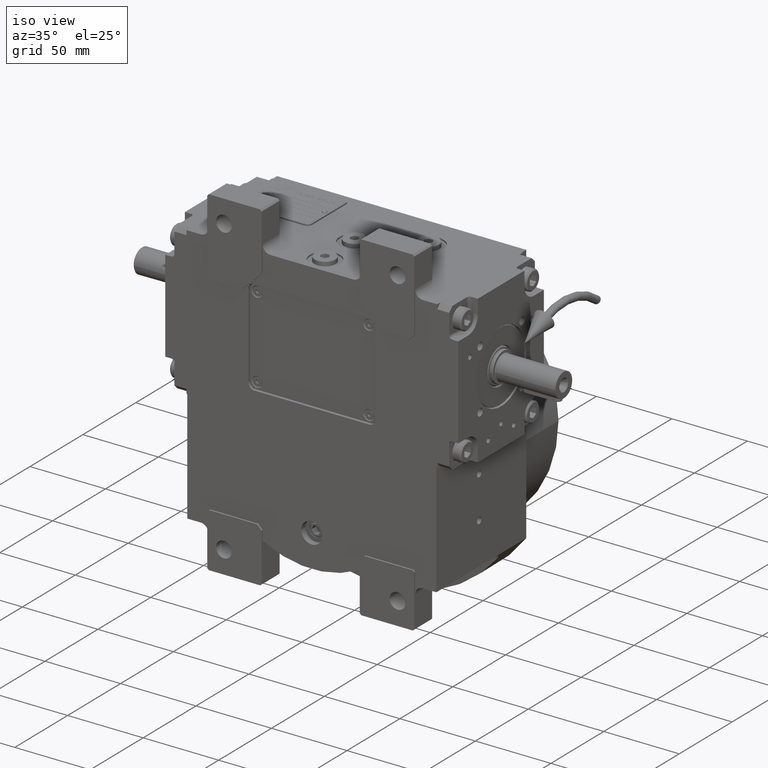
[diagram: clean part render]
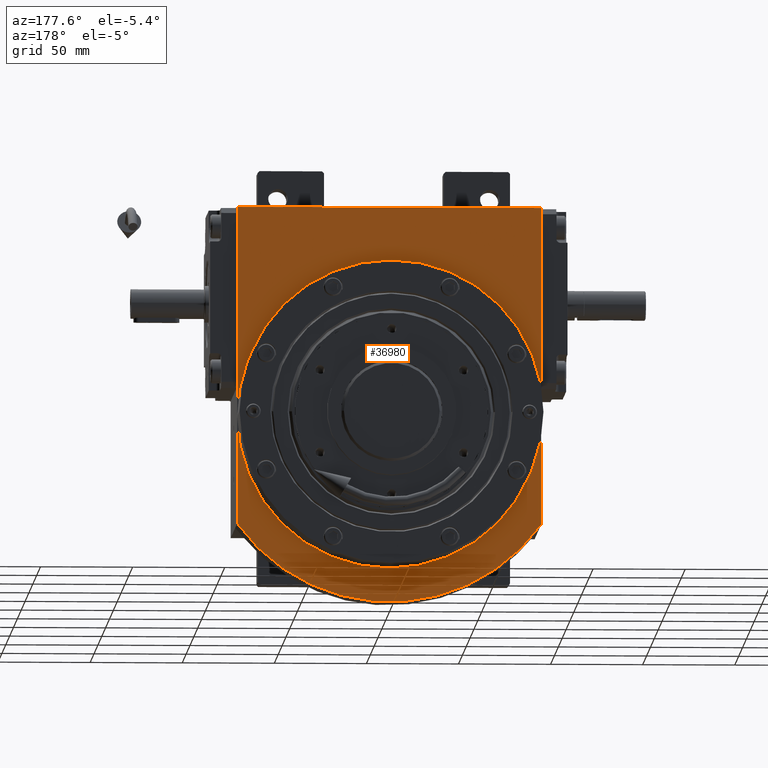
[diagram: tour spotlight — one face highlighted and labeled with its STEP entity id]
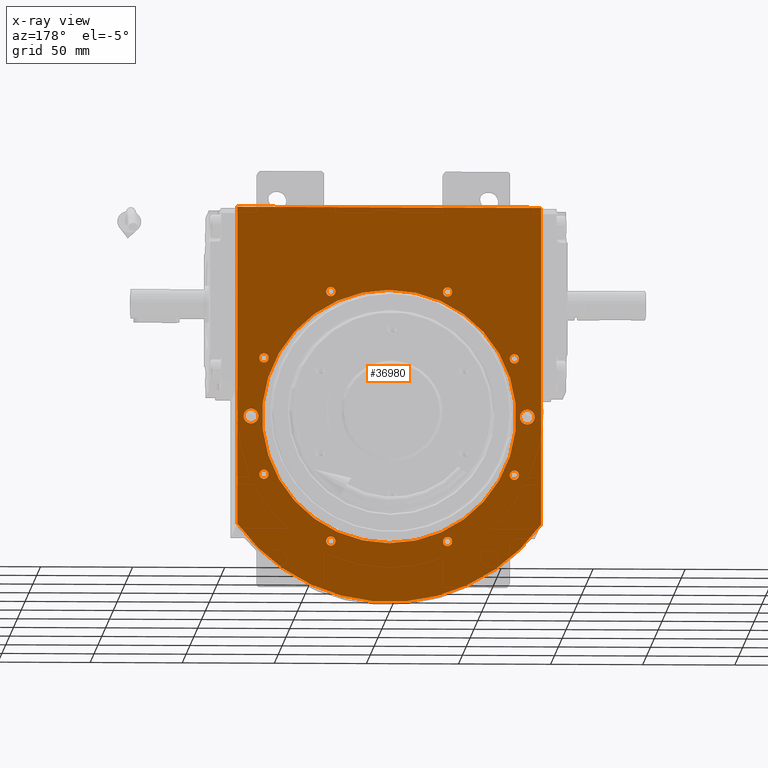
[diagram: x-ray of the same camera — body ghosted, this tour face saturated]
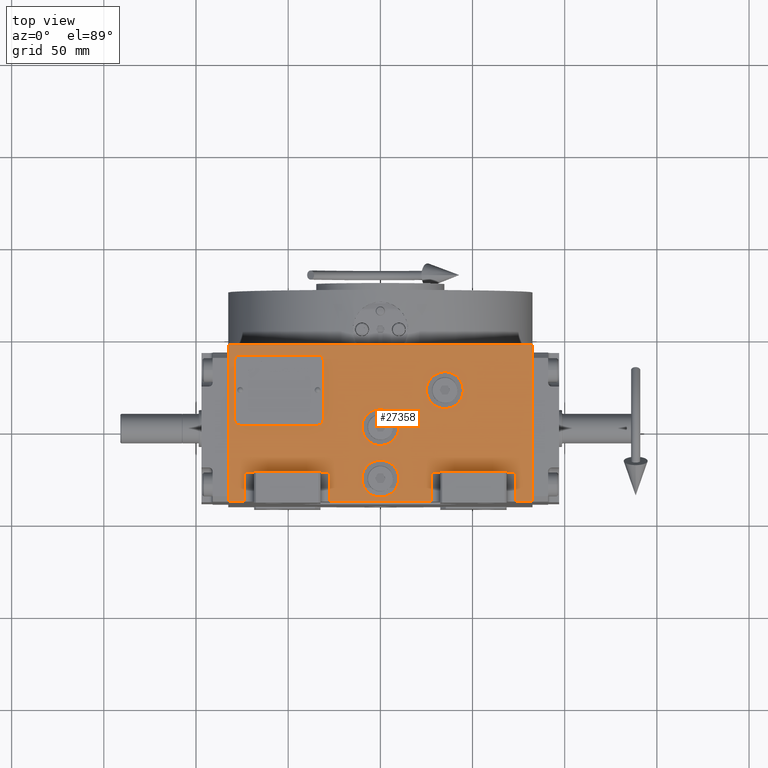
[diagram: tour spotlight — one face highlighted and labeled with its STEP entity id]
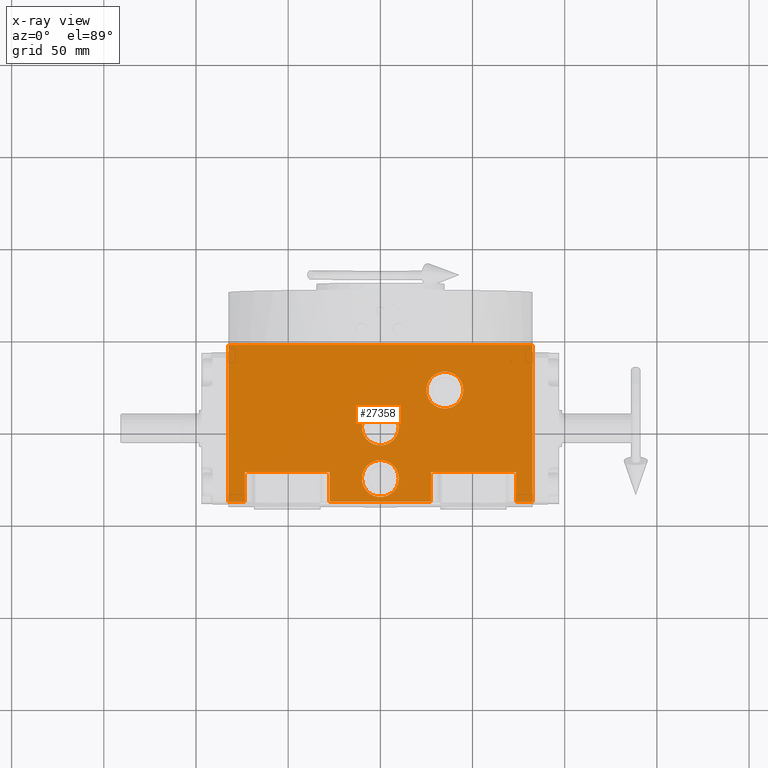
[diagram: x-ray of the same camera — body ghosted, this tour face saturated]
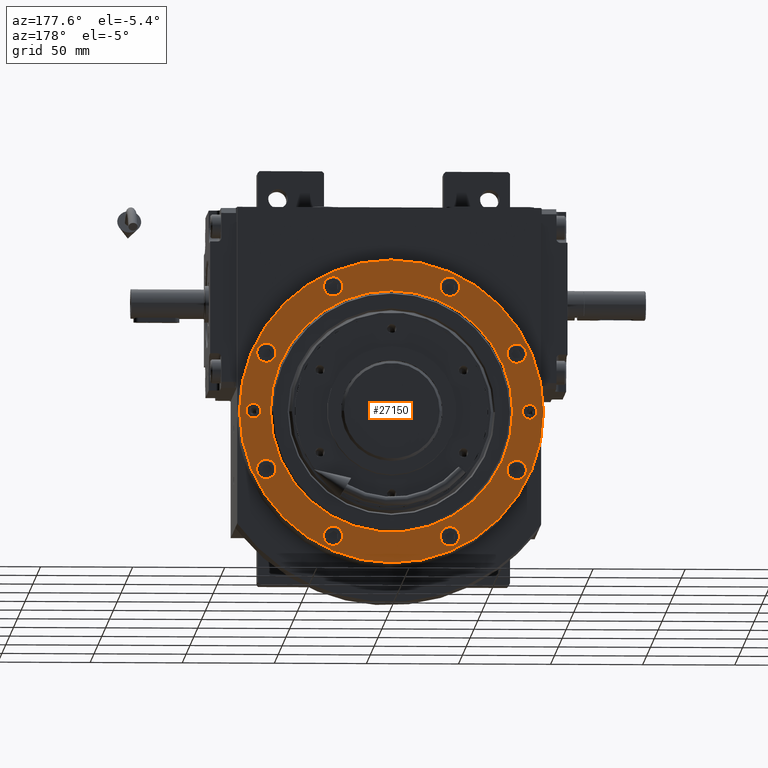
[diagram: tour spotlight — one face highlighted and labeled with its STEP entity id]
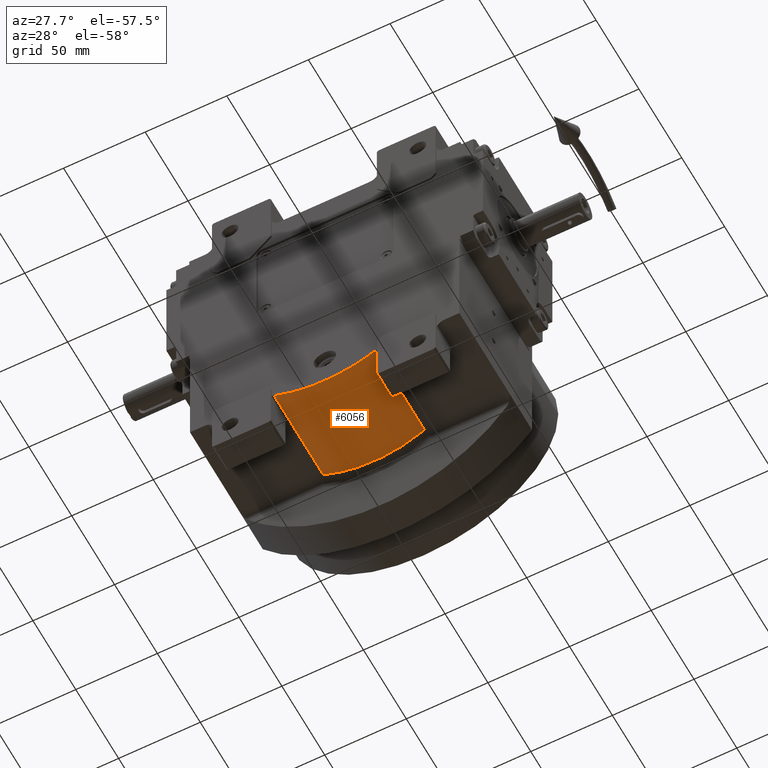
[diagram: tour spotlight — one face highlighted and labeled with its STEP entity id]
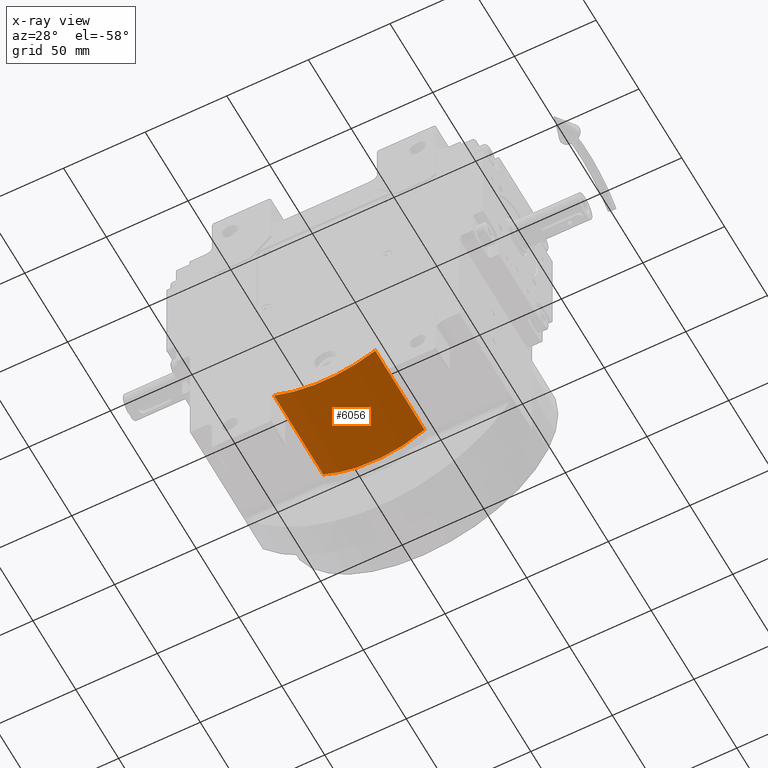
[diagram: x-ray of the same camera — body ghosted, this tour face saturated]
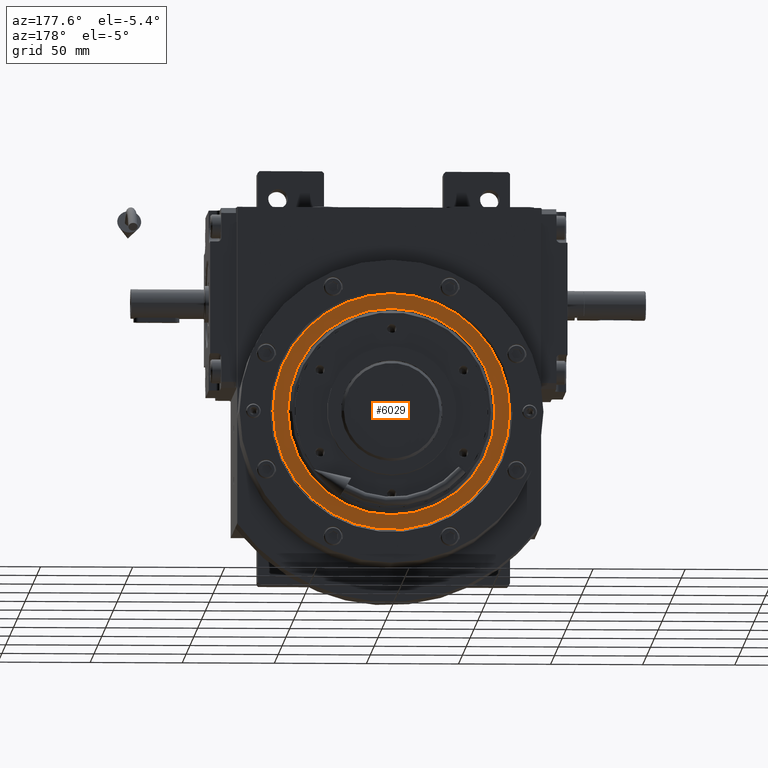
[diagram: tour spotlight — one face highlighted and labeled with its STEP entity id]
A machine part: a face-by-face anatomy tour. The part has 1922 B-rep faces; the first image is the clean iso view, then the 5 largest visible faces are spotlighted one at a time (largest first), each with its STEP entity span.

Face 1 — auxiliary view, entity #36980. An x-ray twin of the same camera follows (body ghosted, this face saturated) — the face is partly hidden behind the body. In plain terms, the highlighted planar face has unit normal (0, 1, 0).
Definition (entity closure, byte-faithful):
#287 = AXIS2_PLACEMENT_3D ( 'NONE', #12054, #31761, #11411 ) ;
#375 = FACE_BOUND ( 'NONE', #4343, .T. ) ;
#705 = DIRECTION ( 'NONE',  ( -1.000000000000000000, 0.000000000000000000, 0.000000000000000000 ) ) ;
#996 = CARTESIAN_POINT ( 'NONE',  ( 29.19636963055250334, 44.50000000000000000, 67.97308402774871183 ) ) ;
#1129 = EDGE_LOOP ( 'NONE', ( #7033, #31608 ) ) ;
#1296 = CIRCLE ( 'NONE', #29185, 2.500000000000002220 ) ;
#1318 = CARTESIAN_POINT ( 'NONE',  ( -75.00000000000000000, 44.50000000000000000, 0.000000000000000000 ) ) ;
#1348 = CARTESIAN_POINT ( 'NONE',  ( 70.47308402774881131, 44.50000000000000000, 31.69636963055249979 ) ) ;
#1495 = DIRECTION ( 'NONE',  ( 0.000000000000000000, 1.000000000000000000, 0.000000000000000000 ) ) ;
#1778 = DIRECTION ( 'NONE',  ( 0.000000000000000000, 1.000000000000000000, 0.000000000000000000 ) ) ;
#2174 = CARTESIAN_POINT ( 'NONE',  ( -82.50000000000000000, 44.50000000000000000, -58.50000000000000000 ) ) ;
#2453 = CARTESIAN_POINT ( 'NONE',  ( 8.450062914116737844E-15, 44.50000000000000000, -69.00000000000000000 ) ) ;
#2704 = CIRCLE ( 'NONE', #8969, 2.500000000000002220 ) ;
#2856 = CARTESIAN_POINT ( 'NONE',  ( 0.000000000000000000, 44.50000000000000000, 0.000000000000000000 ) ) ;
#2893 = AXIS2_PLACEMENT_3D ( 'NONE', #47371, #32198, #31876 ) ;
#2913 = DIRECTION ( 'NONE',  ( 1.000000000000000000, 0.000000000000000000, 0.000000000000000000 ) ) ;
#3182 = EDGE_CURVE ( 'NONE', #49137, #46078, #61837, .T. ) ;
#3377 = ORIENTED_EDGE ( 'NONE', *, *, #18859, .F. ) ;
#3900 = VERTEX_POINT ( 'NONE', #25199 ) ;
#3963 = DIRECTION ( 'NONE',  ( 1.000000000000000000, 0.000000000000000000, 0.000000000000000000 ) ) ;
#3998 = ORIENTED_EDGE ( 'NONE', *, *, #54165, .F. ) ;
#4046 = CARTESIAN_POINT ( 'NONE',  ( -67.97308402774881131, 44.50000000000000000, -31.69636963055245360 ) ) ;
#4091 = VERTEX_POINT ( 'NONE', #40832 ) ;
#4343 = EDGE_LOOP ( 'NONE', ( #33651, #21663 ) ) ;
#4366 = DIRECTION ( 'NONE',  ( 0.000000000000000000, 1.000000000000000000, 0.000000000000000000 ) ) ;
#4751 = EDGE_CURVE ( 'NONE', #33906, #20018, #34062, .T. ) ;
#4757 = EDGE_CURVE ( 'NONE', #17140, #26744, #40264, .T. ) ;
#4920 = AXIS2_PLACEMENT_3D ( 'NONE', #29813, #49538, #705 ) ;
#5057 = EDGE_LOOP ( 'NONE', ( #49719, #14930 ) ) ;
#5116 = AXIS2_PLACEMENT_3D ( 'NONE', #41081, #62027, #11652 ) ;
#5990 = EDGE_CURVE ( 'NONE', #34478, #54677, #49637, .T. ) ;
#6316 = VERTEX_POINT ( 'NONE', #30969 ) ;
#6756 = CARTESIAN_POINT ( 'NONE',  ( -82.50000000000000000, 44.50000000000000000, 114.0000000000000000 ) ) ;
#6787 = DIRECTION ( 'NONE',  ( 0.000000000000000000, 0.000000000000000000, 1.000000000000000000 ) ) ;
#7033 = ORIENTED_EDGE ( 'NONE', *, *, #4751, .T. ) ;
#7234 = EDGE_CURVE ( 'NONE', #11166, #41161, #45037, .T. ) ;
#7680 = ORIENTED_EDGE ( 'NONE', *, *, #25446, .T. ) ;
#7700 = DIRECTION ( 'NONE',  ( 0.000000000000000000, 1.000000000000000000, 0.000000000000000000 ) ) ;
#8072 = ORIENTED_EDGE ( 'NONE', *, *, #30214, .F. ) ;
#8321 = DIRECTION ( 'NONE',  ( 1.000000000000000000, 0.000000000000000000, 0.000000000000000000 ) ) ;
#8373 = ORIENTED_EDGE ( 'NONE', *, *, #24644, .T. ) ;
#8619 = EDGE_LOOP ( 'NONE', ( #8072, #24344 ) ) ;
#8812 = AXIS2_PLACEMENT_3D ( 'NONE', #62402, #12023, #2913 ) ;
#8819 = CARTESIAN_POINT ( 'NONE',  ( 82.50000000000000000, 44.50000000000000000, 114.0000000000000000 ) ) ;
#8885 = LINE ( 'NONE', #30412, #16035 ) ;
#8918 = CIRCLE ( 'NONE', #8964, 2.500000000000002220 ) ;
#8964 = AXIS2_PLACEMENT_3D ( 'NONE', #37127, #7700, #57763 ) ;
#8969 = AXIS2_PLACEMENT_3D ( 'NONE', #34833, #49370, #43923 ) ;
#9112 = EDGE_LOOP ( 'NONE', ( #46410, #3377 ) ) ;
#9165 = FACE_BOUND ( 'NONE', #1129, .T. ) ;
#10019 = CARTESIAN_POINT ( 'NONE',  ( -75.00000000000000000, 44.50000000000000000, -4.000000000000006217 ) ) ;
#10419 = CARTESIAN_POINT ( 'NONE',  ( 67.97308402774881131, 44.50000000000000000, 31.69636963055249979 ) ) ;
#10679 = ORIENTED_EDGE ( 'NONE', *, *, #7234, .T. ) ;
#11166 = VERTEX_POINT ( 'NONE', #2174 ) ;
#11190 = DIRECTION ( 'NONE',  ( 1.000000000000000000, 0.000000000000000000, 0.000000000000000000 ) ) ;
#11234 = DIRECTION ( 'NONE',  ( 0.000000000000000000, 1.000000000000000000, 0.000000000000000000 ) ) ;
#11310 = EDGE_CURVE ( 'NONE', #41161, #17481, #56811, .T. ) ;
#11411 = DIRECTION ( 'NONE',  ( -1.000000000000000000, 0.000000000000000000, -2.775557561562888984E-15 ) ) ;
#11587 = VERTEX_POINT ( 'NONE', #26355 ) ;
#11652 = DIRECTION ( 'NONE',  ( -1.000000000000000000, 0.000000000000000000, 0.000000000000000000 ) ) ;
#11660 = CARTESIAN_POINT ( 'NONE',  ( 75.00000000000000000, 44.50000000000000000, 0.000000000000000000 ) ) ;
#12023 = DIRECTION ( 'NONE',  ( 0.000000000000000000, 1.000000000000000000, 0.000000000000000000 ) ) ;
#12028 = CARTESIAN_POINT ( 'NONE',  ( -31.69636963055245360, 44.50000000000000000, 67.97308402774881131 ) ) ;
#12054 = CARTESIAN_POINT ( 'NONE',  ( -67.97308402774881131, 44.50000000000000000, -31.69636963055245360 ) ) ;
#13283 = CARTESIAN_POINT ( 'NONE',  ( -31.69636963055249979, 44.50000000000000000, -67.97308402774881131 ) ) ;
#13356 = CIRCLE ( 'NONE', #2893, 101.3235294117645822 ) ;
#14105 = DIRECTION ( 'NONE',  ( 0.000000000000000000, 1.000000000000000000, 0.000000000000000000 ) ) ;
#14114 = VERTEX_POINT ( 'NONE', #45724 ) ;
#14458 = CARTESIAN_POINT ( 'NONE',  ( 34.19636963055244649, 44.50000000000000000, -67.97308402774881131 ) ) ;
#14930 = ORIENTED_EDGE ( 'NONE', *, *, #38159, .F. ) ;
#15678 = DIRECTION ( 'NONE',  ( 0.000000000000000000, 1.000000000000000000, 0.000000000000000000 ) ) ;
#15782 = DIRECTION ( 'NONE',  ( 1.000000000000000000, 0.000000000000000000, 2.775557561562888984E-15 ) ) ;
#16035 = VECTOR ( 'NONE', #48316, 1000.000000000000000 ) ;
#16236 = DIRECTION ( 'NONE',  ( 0.000000000000000000, 1.000000000000000000, 0.000000000000000000 ) ) ;
#16588 = CARTESIAN_POINT ( 'NONE',  ( 31.69636963055245360, 44.50000000000000000, -67.97308402774881131 ) ) ;
#17140 = VERTEX_POINT ( 'NONE', #25325 ) ;
#17481 = VERTEX_POINT ( 'NONE', #8819 ) ;
#17974 = CIRCLE ( 'NONE', #21059, 4.000000000000006217 ) ;
#18610 = DIRECTION ( 'NONE',  ( 1.000000000000000000, 0.000000000000000000, 2.775557561562888984E-15 ) ) ;
#18859 = EDGE_CURVE ( 'NONE', #26744, #17140, #56919, .T. ) ;
#18922 = EDGE_CURVE ( 'NONE', #20018, #33906, #46693, .T. ) ;
#18939 = CARTESIAN_POINT ( 'NONE',  ( -67.97308402774881131, 44.50000000000000000, 31.69636963055245360 ) ) ;
#19179 = FACE_OUTER_BOUND ( 'NONE', #51673, .T. ) ;
#19271 = VERTEX_POINT ( 'NONE', #10019 ) ;
#19494 = FACE_BOUND ( 'NONE', #51183, .T. ) ;
#19772 = CIRCLE ( 'NONE', #49664, 4.000000000000006217 ) ;
#20018 = VERTEX_POINT ( 'NONE', #2453 ) ;
#20127 = FACE_BOUND ( 'NONE', #54264, .T. ) ;
#20216 = EDGE_LOOP ( 'NONE', ( #3998, #35867 ) ) ;
#20229 = EDGE_CURVE ( 'NONE', #52040, #53622, #1296, .T. ) ;
#20538 = AXIS2_PLACEMENT_3D ( 'NONE', #50014, #11234, #41631 ) ;
#21059 = AXIS2_PLACEMENT_3D ( 'NONE', #62804, #61859, #53444 ) ;
#21183 = CARTESIAN_POINT ( 'NONE',  ( 34.19636963055249623, 44.50000000000000000, 67.97308402774871183 ) ) ;
#21234 = AXIS2_PLACEMENT_3D ( 'NONE', #10419, #30126, #60504 ) ;
#21332 = DIRECTION ( 'NONE',  ( -0.000000000000000000, -1.000000000000000000, -0.000000000000000000 ) ) ;
#21663 = ORIENTED_EDGE ( 'NONE', *, *, #51152, .F. ) ;
#21678 = EDGE_CURVE ( 'NONE', #56664, #6316, #42638, .T. ) ;
#21919 = EDGE_CURVE ( 'NONE', #3900, #61621, #31326, .T. ) ;
#22664 = DIRECTION ( 'NONE',  ( 0.000000000000000000, 1.000000000000000000, 0.000000000000000000 ) ) ;
#23443 = CARTESIAN_POINT ( 'NONE',  ( -70.47308402774881131, 44.50000000000000000, -31.69636963055245360 ) ) ;
#23818 = AXIS2_PLACEMENT_3D ( 'NONE', #61301, #1495, #15782 ) ;
#24332 = ORIENTED_EDGE ( 'NONE', *, *, #34125, .F. ) ;
#24344 = ORIENTED_EDGE ( 'NONE', *, *, #27713, .F. ) ;
#24463 = VECTOR ( 'NONE', #8321, 1000.000000000000000 ) ;
#24486 = ORIENTED_EDGE ( 'NONE', *, *, #5990, .F. ) ;
#24644 = EDGE_CURVE ( 'NONE', #17481, #11587, #8885, .T. ) ;
#24822 = ORIENTED_EDGE ( 'NONE', *, *, #36359, .F. ) ;
#24954 = FACE_BOUND ( 'NONE', #35796, .T. ) ;
#25199 = CARTESIAN_POINT ( 'NONE',  ( 65.47308402774879710, 44.50000000000000000, -31.69636963055249979 ) ) ;
#25325 = CARTESIAN_POINT ( 'NONE',  ( -70.47308402774881131, 44.50000000000000000, 31.69636963055245360 ) ) ;
#25446 = EDGE_CURVE ( 'NONE', #11587, #11166, #13356, .T. ) ;
#26111 = CIRCLE ( 'NONE', #287, 2.500000000000002220 ) ;
#26355 = CARTESIAN_POINT ( 'NONE',  ( 82.50000000000000000, 44.50000000000000000, -58.50000000000000000 ) ) ;
#26744 = VERTEX_POINT ( 'NONE', #32831 ) ;
#26887 = DIRECTION ( 'NONE',  ( 1.000000000000000000, 0.000000000000000000, 0.000000000000000000 ) ) ;
#27367 = ORIENTED_EDGE ( 'NONE', *, *, #27408, .F. ) ;
#27408 = EDGE_CURVE ( 'NONE', #39326, #54210, #62519, .T. ) ;
#27660 = EDGE_CURVE ( 'NONE', #32373, #62818, #35688, .T. ) ;
#27713 = EDGE_CURVE ( 'NONE', #4091, #14114, #50165, .T. ) ;
#28310 = EDGE_CURVE ( 'NONE', #54210, #39326, #2704, .T. ) ;
#28858 = DIRECTION ( 'NONE',  ( -0.000000000000000000, 1.000000000000000000, 0.000000000000000000 ) ) ;
#28948 = CIRCLE ( 'NONE', #23818, 2.500000000000002220 ) ;
#29094 = AXIS2_PLACEMENT_3D ( 'NONE', #43514, #35304, #63198 ) ;
#29185 = AXIS2_PLACEMENT_3D ( 'NONE', #4046, #14105, #34123 ) ;
#29215 = AXIS2_PLACEMENT_3D ( 'NONE', #47257, #22664, #38530 ) ;
#29813 = CARTESIAN_POINT ( 'NONE',  ( 31.69636963055245360, 44.50000000000000000, -67.97308402774881131 ) ) ;
#30126 = DIRECTION ( 'NONE',  ( 0.000000000000000000, 1.000000000000000000, 0.000000000000000000 ) ) ;
#30214 = EDGE_CURVE ( 'NONE', #14114, #4091, #8918, .T. ) ;
#30412 = CARTESIAN_POINT ( 'NONE',  ( 82.50000000000000000, 44.50000000000000000, 114.0000000000000000 ) ) ;
#30969 = CARTESIAN_POINT ( 'NONE',  ( 29.19636963055245005, 44.50000000000000000, -67.97308402774881131 ) ) ;
#30980 = AXIS2_PLACEMENT_3D ( 'NONE', #2856, #21332, #6787 ) ;
#31089 = DIRECTION ( 'NONE',  ( 0.000000000000000000, 0.000000000000000000, 1.000000000000000000 ) ) ;
#31326 = CIRCLE ( 'NONE', #29215, 2.500000000000002220 ) ;
#31608 = ORIENTED_EDGE ( 'NONE', *, *, #18922, .T. ) ;
#31734 = DIRECTION ( 'NONE',  ( 0.000000000000000000, 1.000000000000000000, 0.000000000000000000 ) ) ;
#31761 = DIRECTION ( 'NONE',  ( 0.000000000000000000, 1.000000000000000000, 0.000000000000000000 ) ) ;
#31876 = DIRECTION ( 'NONE',  ( 0.8142235123367200789, 0.000000000000000000, -0.5805515239477501144 ) ) ;
#32198 = DIRECTION ( 'NONE',  ( 0.000000000000000000, 1.000000000000000000, 0.000000000000000000 ) ) ;
#32373 = VERTEX_POINT ( 'NONE', #37594 ) ;
#32410 = ORIENTED_EDGE ( 'NONE', *, *, #21919, .F. ) ;
#32634 = DIRECTION ( 'NONE',  ( 0.000000000000000000, 0.000000000000000000, -1.000000000000000000 ) ) ;
#32831 = CARTESIAN_POINT ( 'NONE',  ( -65.47308402774879710, 44.50000000000000000, 31.69636963055245360 ) ) ;
#33012 = CARTESIAN_POINT ( 'NONE',  ( -29.19636963055245005, 44.50000000000000000, 67.97308402774881131 ) ) ;
#33084 = AXIS2_PLACEMENT_3D ( 'NONE', #1318, #16236, #31089 ) ;
#33651 = ORIENTED_EDGE ( 'NONE', *, *, #3182, .F. ) ;
#33906 = VERTEX_POINT ( 'NONE', #48566 ) ;
#34062 = CIRCLE ( 'NONE', #30980, 69.00000000000000000 ) ;
#34123 = DIRECTION ( 'NONE',  ( 1.000000000000000000, 0.000000000000000000, 2.775557561562888984E-15 ) ) ;
#34125 = EDGE_CURVE ( 'NONE', #19271, #35358, #52686, .T. ) ;
#34229 = EDGE_LOOP ( 'NONE', ( #36854, #39716 ) ) ;
#34364 = FACE_BOUND ( 'NONE', #20216, .T. ) ;
#34478 = VERTEX_POINT ( 'NONE', #53656 ) ;
#34833 = CARTESIAN_POINT ( 'NONE',  ( 67.97308402774881131, 44.50000000000000000, 31.69636963055249979 ) ) ;
#35304 = DIRECTION ( 'NONE',  ( -0.000000000000000000, -1.000000000000000000, -0.000000000000000000 ) ) ;
#35358 = VERTEX_POINT ( 'NONE', #46372 ) ;
#35377 = AXIS2_PLACEMENT_3D ( 'NONE', #16588, #35658, #26887 ) ;
#35658 = DIRECTION ( 'NONE',  ( 0.000000000000000000, 1.000000000000000000, 0.000000000000000000 ) ) ;
#35688 = CIRCLE ( 'NONE', #49101, 2.500000000000002220 ) ;
#35796 = EDGE_LOOP ( 'NONE', ( #37338, #24332 ) ) ;
#35867 = ORIENTED_EDGE ( 'NONE', *, *, #21678, .F. ) ;
#36359 = EDGE_CURVE ( 'NONE', #61621, #3900, #28948, .T. ) ;
#36386 = VECTOR ( 'NONE', #59898, 1000.000000000000000 ) ;
#36445 = CARTESIAN_POINT ( 'NONE',  ( -65.47308402774879710, 44.50000000000000000, -31.69636963055245360 ) ) ;
#36666 = CARTESIAN_POINT ( 'NONE',  ( -75.00000000000000000, 44.50000000000000000, 0.000000000000000000 ) ) ;
#36854 = ORIENTED_EDGE ( 'NONE', *, *, #44754, .F. ) ;
#36980 = ADVANCED_FACE ( 'NONE', ( #9165, #24954, #19494, #375, #20127, #39858, #34364, #59558, #53118, #44081, #48278, #19179 ), #39213, .T. ) ;
#37127 = CARTESIAN_POINT ( 'NONE',  ( -31.69636963055249979, 44.50000000000000000, -67.97308402774881131 ) ) ;
#37338 = ORIENTED_EDGE ( 'NONE', *, *, #59551, .F. ) ;
#37513 = CARTESIAN_POINT ( 'NONE',  ( 65.47308402774879710, 44.50000000000000000, 31.69636963055249979 ) ) ;
#37594 = CARTESIAN_POINT ( 'NONE',  ( -34.19636963055244649, 44.50000000000000000, 67.97308402774881131 ) ) ;
#38159 = EDGE_CURVE ( 'NONE', #62818, #32373, #42596, .T. ) ;
#38530 = DIRECTION ( 'NONE',  ( -1.000000000000000000, 0.000000000000000000, -2.775557561562888984E-15 ) ) ;
#39213 = PLANE ( 'NONE',  #55931 ) ;
#39326 = VERTEX_POINT ( 'NONE', #37513 ) ;
#39716 = ORIENTED_EDGE ( 'NONE', *, *, #20229, .F. ) ;
#39858 = FACE_BOUND ( 'NONE', #45250, .T. ) ;
#40264 = CIRCLE ( 'NONE', #5116, 2.500000000000002220 ) ;
#40832 = CARTESIAN_POINT ( 'NONE',  ( -29.19636963055245005, 44.50000000000000000, -67.97308402774881131 ) ) ;
#41081 = CARTESIAN_POINT ( 'NONE',  ( -67.97308402774871183, 44.50000000000000000, 31.69636963055245360 ) ) ;
#41161 = VERTEX_POINT ( 'NONE', #6756 ) ;
#41631 = DIRECTION ( 'NONE',  ( -1.000000000000000000, 0.000000000000000000, 0.000000000000000000 ) ) ;
#42502 = AXIS2_PLACEMENT_3D ( 'NONE', #18939, #4366, #18610 ) ;
#42596 = CIRCLE ( 'NONE', #50845, 2.499999999999998668 ) ;
#42638 = CIRCLE ( 'NONE', #35377, 2.500000000000002220 ) ;
#43514 = CARTESIAN_POINT ( 'NONE',  ( 0.000000000000000000, 44.50000000000000000, 0.000000000000000000 ) ) ;
#43923 = DIRECTION ( 'NONE',  ( 1.000000000000000000, 0.000000000000000000, 0.000000000000000000 ) ) ;
#44081 = FACE_BOUND ( 'NONE', #9112, .T. ) ;
#44754 = EDGE_CURVE ( 'NONE', #53622, #52040, #26111, .T. ) ;
#45037 = LINE ( 'NONE', #49553, #36386 ) ;
#45250 = EDGE_LOOP ( 'NONE', ( #32410, #24822 ) ) ;
#45724 = CARTESIAN_POINT ( 'NONE',  ( -34.19636963055249623, 44.50000000000000000, -67.97308402774881131 ) ) ;
#46078 = VERTEX_POINT ( 'NONE', #21183 ) ;
#46372 = CARTESIAN_POINT ( 'NONE',  ( -75.00000000000000000, 44.50000000000000000, 4.000000000000006217 ) ) ;
#46410 = ORIENTED_EDGE ( 'NONE', *, *, #4757, .F. ) ;
#46693 = CIRCLE ( 'NONE', #29094, 69.00000000000000000 ) ;
#47257 = CARTESIAN_POINT ( 'NONE',  ( 67.97308402774881131, 44.50000000000000000, -31.69636963055249979 ) ) ;
#47371 = CARTESIAN_POINT ( 'NONE',  ( 0.000000000000000000, 44.50000000000000000, 0.3235294117646390077 ) ) ;
#47411 = ORIENTED_EDGE ( 'NONE', *, *, #28310, .F. ) ;
#48139 = AXIS2_PLACEMENT_3D ( 'NONE', #13283, #57556, #48196 ) ;
#48196 = DIRECTION ( 'NONE',  ( 1.000000000000000000, 0.000000000000000000, -5.551115123125785858E-15 ) ) ;
#48278 = FACE_BOUND ( 'NONE', #5057, .T. ) ;
#48303 = CIRCLE ( 'NONE', #4920, 2.499999999999998668 ) ;
#48316 = DIRECTION ( 'NONE',  ( -1.647635329298784785E-16, 0.000000000000000000, -1.000000000000000000 ) ) ;
#48566 = CARTESIAN_POINT ( 'NONE',  ( 0.000000000000000000, 44.50000000000000000, 69.00000000000000000 ) ) ;
#48644 = AXIS2_PLACEMENT_3D ( 'NONE', #11660, #55937, #32634 ) ;
#49101 = AXIS2_PLACEMENT_3D ( 'NONE', #12028, #31734, #51447 ) ;
#49103 = CARTESIAN_POINT ( 'NONE',  ( -31.69636963055245360, 44.50000000000000000, 67.97308402774881131 ) ) ;
#49137 = VERTEX_POINT ( 'NONE', #996 ) ;
#49370 = DIRECTION ( 'NONE',  ( 0.000000000000000000, 1.000000000000000000, 0.000000000000000000 ) ) ;
#49440 = CARTESIAN_POINT ( 'NONE',  ( 70.47308402774881131, 44.50000000000000000, -31.69636963055249979 ) ) ;
#49538 = DIRECTION ( 'NONE',  ( 0.000000000000000000, 1.000000000000000000, 0.000000000000000000 ) ) ;
#49553 = CARTESIAN_POINT ( 'NONE',  ( -82.50000000000000000, 44.50000000000000000, -58.50000000000000000 ) ) ;
#49637 = CIRCLE ( 'NONE', #48644, 4.000000000000006217 ) ;
#49664 = AXIS2_PLACEMENT_3D ( 'NONE', #36666, #15678, #56365 ) ;
#49719 = ORIENTED_EDGE ( 'NONE', *, *, #27660, .F. ) ;
#50014 = CARTESIAN_POINT ( 'NONE',  ( 31.69636963055249979, 44.50000000000000000, 67.97308402774871183 ) ) ;
#50099 = CIRCLE ( 'NONE', #8812, 2.500000000000002220 ) ;
#50165 = CIRCLE ( 'NONE', #48139, 2.499999999999998668 ) ;
#50845 = AXIS2_PLACEMENT_3D ( 'NONE', #49103, #1778, #11190 ) ;
#51152 = EDGE_CURVE ( 'NONE', #46078, #49137, #50099, .T. ) ;
#51183 = EDGE_LOOP ( 'NONE', ( #55355, #24486 ) ) ;
#51447 = DIRECTION ( 'NONE',  ( -1.000000000000000000, 0.000000000000000000, 0.000000000000000000 ) ) ;
#51673 = EDGE_LOOP ( 'NONE', ( #7680, #10679, #56305, #8373 ) ) ;
#52040 = VERTEX_POINT ( 'NONE', #36445 ) ;
#52686 = CIRCLE ( 'NONE', #33084, 4.000000000000006217 ) ;
#53118 = FACE_BOUND ( 'NONE', #34229, .T. ) ;
#53444 = DIRECTION ( 'NONE',  ( 0.000000000000000000, 0.000000000000000000, -1.000000000000000000 ) ) ;
#53622 = VERTEX_POINT ( 'NONE', #23443 ) ;
#53656 = CARTESIAN_POINT ( 'NONE',  ( 75.00000000000000000, 44.50000000000000000, -4.000000000000006217 ) ) ;
#54008 = CARTESIAN_POINT ( 'NONE',  ( 75.00000000000000000, 44.50000000000000000, 4.000000000000006217 ) ) ;
#54165 = EDGE_CURVE ( 'NONE', #6316, #56664, #48303, .T. ) ;
#54210 = VERTEX_POINT ( 'NONE', #1348 ) ;
#54264 = EDGE_LOOP ( 'NONE', ( #27367, #47411 ) ) ;
#54677 = VERTEX_POINT ( 'NONE', #54008 ) ;
#55355 = ORIENTED_EDGE ( 'NONE', *, *, #62244, .F. ) ;
#55931 = AXIS2_PLACEMENT_3D ( 'NONE', #58605, #28858, #3963 ) ;
#55937 = DIRECTION ( 'NONE',  ( 0.000000000000000000, 1.000000000000000000, -0.000000000000000000 ) ) ;
#56305 = ORIENTED_EDGE ( 'NONE', *, *, #11310, .T. ) ;
#56365 = DIRECTION ( 'NONE',  ( 0.000000000000000000, 0.000000000000000000, 1.000000000000000000 ) ) ;
#56664 = VERTEX_POINT ( 'NONE', #14458 ) ;
#56811 = LINE ( 'NONE', #61977, #24463 ) ;
#56919 = CIRCLE ( 'NONE', #42502, 2.500000000000002220 ) ;
#57556 = DIRECTION ( 'NONE',  ( 0.000000000000000000, 1.000000000000000000, 0.000000000000000000 ) ) ;
#57763 = DIRECTION ( 'NONE',  ( -1.000000000000000000, 0.000000000000000000, 0.000000000000000000 ) ) ;
#58605 = CARTESIAN_POINT ( 'NONE',  ( 0.000000000000000000, 44.50000000000000000, 0.000000000000000000 ) ) ;
#59551 = EDGE_CURVE ( 'NONE', #35358, #19271, #19772, .T. ) ;
#59558 = FACE_BOUND ( 'NONE', #8619, .T. ) ;
#59898 = DIRECTION ( 'NONE',  ( 0.000000000000000000, 0.000000000000000000, 1.000000000000000000 ) ) ;
#60504 = DIRECTION ( 'NONE',  ( -1.000000000000000000, 0.000000000000000000, 0.000000000000000000 ) ) ;
#61301 = CARTESIAN_POINT ( 'NONE',  ( 67.97308402774871183, 44.50000000000000000, -31.69636963055249979 ) ) ;
#61621 = VERTEX_POINT ( 'NONE', #49440 ) ;
#61837 = CIRCLE ( 'NONE', #20538, 2.499999999999998668 ) ;
#61859 = DIRECTION ( 'NONE',  ( 0.000000000000000000, 1.000000000000000000, -0.000000000000000000 ) ) ;
#61977 = CARTESIAN_POINT ( 'NONE',  ( -82.50000000000000000, 44.50000000000000000, 114.0000000000000000 ) ) ;
#62027 = DIRECTION ( 'NONE',  ( 0.000000000000000000, 1.000000000000000000, 0.000000000000000000 ) ) ;
#62244 = EDGE_CURVE ( 'NONE', #54677, #34478, #17974, .T. ) ;
#62402 = CARTESIAN_POINT ( 'NONE',  ( 31.69636963055249979, 44.50000000000000000, 67.97308402774871183 ) ) ;
#62519 = CIRCLE ( 'NONE', #21234, 2.500000000000002220 ) ;
#62804 = CARTESIAN_POINT ( 'NONE',  ( 75.00000000000000000, 44.50000000000000000, 0.000000000000000000 ) ) ;
#62818 = VERTEX_POINT ( 'NONE', #33012 ) ;
#63198 = DIRECTION ( 'NONE',  ( 0.000000000000000000, 0.000000000000000000, 1.000000000000000000 ) ) ;

Face 2 — top view, entity #27358. An x-ray twin of the same camera follows (body ghosted, this face saturated) — the face is partly hidden behind the body. In plain terms, the highlighted planar face has unit normal (0, 0, 1).
Definition (entity closure, byte-faithful):
#22 = CARTESIAN_POINT ( 'NONE',  ( 10.00000000000000000, -28.00000000000000000, 114.0000000000000000 ) ) ;
#44 = FACE_OUTER_BOUND ( 'NONE', #62890, .T. ) ;
#60 = CARTESIAN_POINT ( 'NONE',  ( 0.000000000000000000, -8.881784197001250351E-16, 114.0000000000000000 ) ) ;
#144 = CIRCLE ( 'NONE', #15664, 10.00000000000000000 ) ;
#153 = CARTESIAN_POINT ( 'NONE',  ( 35.00000000000000000, 20.00000000000000000, 114.0000000000000000 ) ) ;
#380 = DIRECTION ( 'NONE',  ( 0.000000000000000000, 0.000000000000000000, 1.000000000000000000 ) ) ;
#1142 = VECTOR ( 'NONE', #59541, 1000.000000000000000 ) ;
#1713 = EDGE_CURVE ( 'NONE', #33031, #4432, #13128, .T. ) ;
#3802 = CARTESIAN_POINT ( 'NONE',  ( -73.50000000000000000, -24.50000000000000000, 114.0000000000000000 ) ) ;
#3848 = CARTESIAN_POINT ( 'NONE',  ( 0.000000000000000000, -28.00000000000000000, 114.0000000000000000 ) ) ;
#4000 = CARTESIAN_POINT ( 'NONE',  ( -82.50000000000000000, -40.50000000000000000, 114.0000000000000000 ) ) ;
#4334 = LINE ( 'NONE', #30742, #61410 ) ;
#4432 = VERTEX_POINT ( 'NONE', #54005 ) ;
#4604 = FACE_BOUND ( 'NONE', #53339, .T. ) ;
#5018 = DIRECTION ( 'NONE',  ( 0.000000000000000000, 1.000000000000000000, 0.000000000000000000 ) ) ;
#5339 = LINE ( 'NONE', #30870, #54289 ) ;
#5932 = CARTESIAN_POINT ( 'NONE',  ( 0.000000000000000000, 3.552713678800499352E-15, 114.0000000000000000 ) ) ;
#6756 = CARTESIAN_POINT ( 'NONE',  ( -82.50000000000000000, 44.50000000000000000, 114.0000000000000000 ) ) ;
#6833 = EDGE_CURVE ( 'NONE', #12100, #30316, #33184, .T. ) ;
#7324 = DIRECTION ( 'NONE',  ( 0.000000000000000000, 0.000000000000000000, 1.000000000000000000 ) ) ;
#7703 = ORIENTED_EDGE ( 'NONE', *, *, #54218, .T. ) ;
#8321 = DIRECTION ( 'NONE',  ( 1.000000000000000000, 0.000000000000000000, 0.000000000000000000 ) ) ;
#8783 = CARTESIAN_POINT ( 'NONE',  ( 27.49999999999934630, -24.50000000000000000, 114.0000000000000000 ) ) ;
#8819 = CARTESIAN_POINT ( 'NONE',  ( 82.50000000000000000, 44.50000000000000000, 114.0000000000000000 ) ) ;
#8856 = VERTEX_POINT ( 'NONE', #36940 ) ;
#8863 = AXIS2_PLACEMENT_3D ( 'NONE', #59077, #53587, #58439 ) ;
#9110 = AXIS2_PLACEMENT_3D ( 'NONE', #3848, #7324, #12809 ) ;
#9353 = DIRECTION ( 'NONE',  ( 0.000000000000000000, 1.000000000000000000, 0.000000000000000000 ) ) ;
#10378 = ORIENTED_EDGE ( 'NONE', *, *, #11310, .F. ) ;
#10717 = DIRECTION ( 'NONE',  ( 0.000000000000000000, 0.000000000000000000, 1.000000000000000000 ) ) ;
#10735 = CARTESIAN_POINT ( 'NONE',  ( 27.49999999999934630, -24.50000000000000000, 114.0000000000000000 ) ) ;
#11310 = EDGE_CURVE ( 'NONE', #41161, #17481, #56811, .T. ) ;
#11653 = ORIENTED_EDGE ( 'NONE', *, *, #51674, .F. ) ;
#12100 = VERTEX_POINT ( 'NONE', #15659 ) ;
#12403 = EDGE_CURVE ( 'NONE', #15546, #8856, #57599, .T. ) ;
#12809 = DIRECTION ( 'NONE',  ( -1.000000000000000000, -3.469446951953614189E-16, 0.000000000000000000 ) ) ;
#12868 = EDGE_CURVE ( 'NONE', #14296, #51895, #48310, .T. ) ;
#13128 = LINE ( 'NONE', #57712, #30517 ) ;
#13442 = DIRECTION ( 'NONE',  ( 1.000000000000000000, 0.000000000000000000, 0.000000000000000000 ) ) ;
#13685 = CARTESIAN_POINT ( 'NONE',  ( -73.50000000000000000, -24.50000000000000000, 114.0000000000000000 ) ) ;
#14211 = VECTOR ( 'NONE', #62767, 1000.000000000000000 ) ;
#14296 = VERTEX_POINT ( 'NONE', #22693 ) ;
#14674 = VECTOR ( 'NONE', #43035, 1000.000000000000000 ) ;
#14912 = AXIS2_PLACEMENT_3D ( 'NONE', #27401, #10717, #50459 ) ;
#15008 = EDGE_LOOP ( 'NONE', ( #43978, #44738 ) ) ;
#15236 = AXIS2_PLACEMENT_3D ( 'NONE', #5932, #50221, #40874 ) ;
#15546 = VERTEX_POINT ( 'NONE', #60257 ) ;
#15659 = CARTESIAN_POINT ( 'NONE',  ( 25.00000000000000000, 20.00000000000000000, 114.0000000000000000 ) ) ;
#15664 = AXIS2_PLACEMENT_3D ( 'NONE', #60, #380, #20133 ) ;
#15990 = EDGE_CURVE ( 'NONE', #60437, #45275, #55022, .T. ) ;
#17481 = VERTEX_POINT ( 'NONE', #8819 ) ;
#17662 = VECTOR ( 'NONE', #23658, 1000.000000000000000 ) ;
#18031 = VERTEX_POINT ( 'NONE', #44291 ) ;
#18054 = ORIENTED_EDGE ( 'NONE', *, *, #21160, .F. ) ;
#18177 = DIRECTION ( 'NONE',  ( 0.000000000000000000, 1.000000000000000000, 0.000000000000000000 ) ) ;
#18206 = LINE ( 'NONE', #13685, #17662 ) ;
#18255 = DIRECTION ( 'NONE',  ( 1.000000000000000000, 0.000000000000000000, 0.000000000000000000 ) ) ;
#18756 = ORIENTED_EDGE ( 'NONE', *, *, #43248, .F. ) ;
#18907 = DIRECTION ( 'NONE',  ( -8.881784197001250351E-16, -1.000000000000000000, 0.000000000000000000 ) ) ;
#19107 = EDGE_CURVE ( 'NONE', #15546, #18031, #57232, .T. ) ;
#19607 = VERTEX_POINT ( 'NONE', #3802 ) ;
#19915 = DIRECTION ( 'NONE',  ( -1.000000000000000000, -3.469446951953613696E-16, 0.000000000000000000 ) ) ;
#20133 = DIRECTION ( 'NONE',  ( -1.000000000000000000, 8.881784197001247886E-17, 0.000000000000000000 ) ) ;
#21047 = ORIENTED_EDGE ( 'NONE', *, *, #19107, .F. ) ;
#21160 = EDGE_CURVE ( 'NONE', #33031, #45275, #5339, .T. ) ;
#22370 = VECTOR ( 'NONE', #9353, 1000.000000000000000 ) ;
#22397 = EDGE_CURVE ( 'NONE', #4432, #17481, #54565, .T. ) ;
#22693 = CARTESIAN_POINT ( 'NONE',  ( -82.50000000000000000, -40.50000000000000000, 114.0000000000000000 ) ) ;
#23658 = DIRECTION ( 'NONE',  ( 0.000000000000000000, -1.000000000000000000, 0.000000000000000000 ) ) ;
#24263 = ORIENTED_EDGE ( 'NONE', *, *, #24567, .F. ) ;
#24463 = VECTOR ( 'NONE', #8321, 1000.000000000000000 ) ;
#24519 = CARTESIAN_POINT ( 'NONE',  ( 10.00000000000000000, -1.072081766451089851E-15, 114.0000000000000000 ) ) ;
#24567 = EDGE_CURVE ( 'NONE', #60437, #8856, #4334, .T. ) ;
#24944 = VERTEX_POINT ( 'NONE', #63014 ) ;
#25021 = VERTEX_POINT ( 'NONE', #24519 ) ;
#27358 = ADVANCED_FACE ( 'NONE', ( #58275, #4604, #49517, #44 ), #29795, .T. ) ;
#27401 = CARTESIAN_POINT ( 'NONE',  ( 35.00000000000000000, 20.00000000000000000, 114.0000000000000000 ) ) ;
#27675 = CIRCLE ( 'NONE', #9110, 10.00000000000000000 ) ;
#28177 = VERTEX_POINT ( 'NONE', #58445 ) ;
#29745 = EDGE_CURVE ( 'NONE', #14296, #41161, #61812, .T. ) ;
#29795 = PLANE ( 'NONE',  #51189 ) ;
#30079 = AXIS2_PLACEMENT_3D ( 'NONE', #153, #35422, #19915 ) ;
#30316 = VERTEX_POINT ( 'NONE', #44502 ) ;
#30450 = DIRECTION ( 'NONE',  ( 1.000000000000000000, 0.000000000000000000, 0.000000000000000000 ) ) ;
#30517 = VECTOR ( 'NONE', #13442, 1000.000000000000000 ) ;
#30742 = CARTESIAN_POINT ( 'NONE',  ( 27.49999999999934630, -24.50000000000000000, 114.0000000000000000 ) ) ;
#30832 = ORIENTED_EDGE ( 'NONE', *, *, #12403, .T. ) ;
#30870 = CARTESIAN_POINT ( 'NONE',  ( 73.50000000000000000, -40.50000000000000000, 114.0000000000000000 ) ) ;
#31033 = EDGE_CURVE ( 'NONE', #25021, #28177, #36895, .T. ) ;
#33031 = VERTEX_POINT ( 'NONE', #48498 ) ;
#33184 = CIRCLE ( 'NONE', #30079, 10.00000000000000178 ) ;
#34011 = ORIENTED_EDGE ( 'NONE', *, *, #12868, .T. ) ;
#34662 = CARTESIAN_POINT ( 'NONE',  ( -82.50000000000000000, -40.50000000000000000, 114.0000000000000000 ) ) ;
#35422 = DIRECTION ( 'NONE',  ( 0.000000000000000000, 0.000000000000000000, 1.000000000000000000 ) ) ;
#35648 = DIRECTION ( 'NONE',  ( 1.000000000000000000, 0.000000000000000000, 0.000000000000000000 ) ) ;
#36895 = CIRCLE ( 'NONE', #15236, 10.00000000000000000 ) ;
#36940 = CARTESIAN_POINT ( 'NONE',  ( 27.49999999999934630, -40.50000000000000000, 114.0000000000000000 ) ) ;
#36974 = VECTOR ( 'NONE', #35648, 1000.000000000000000 ) ;
#37569 = CARTESIAN_POINT ( 'NONE',  ( -82.50000000000000000, -40.50000000000000000, 114.0000000000000000 ) ) ;
#38171 = CARTESIAN_POINT ( 'NONE',  ( -27.49999999999934630, -40.50000000000000000, 114.0000000000000000 ) ) ;
#38714 = ORIENTED_EDGE ( 'NONE', *, *, #1713, .T. ) ;
#40516 = LINE ( 'NONE', #60205, #36974 ) ;
#40874 = DIRECTION ( 'NONE',  ( 1.000000000000000000, -3.552713678800500140E-16, 0.000000000000000000 ) ) ;
#41161 = VERTEX_POINT ( 'NONE', #6756 ) ;
#42563 = ORIENTED_EDGE ( 'NONE', *, *, #58765, .F. ) ;
#42619 = ORIENTED_EDGE ( 'NONE', *, *, #50666, .F. ) ;
#43035 = DIRECTION ( 'NONE',  ( 0.000000000000000000, 1.000000000000000000, 0.000000000000000000 ) ) ;
#43081 = CARTESIAN_POINT ( 'NONE',  ( -27.49999999999934630, -40.50000000000000000, 114.0000000000000000 ) ) ;
#43248 = EDGE_CURVE ( 'NONE', #28177, #25021, #144, .T. ) ;
#43978 = ORIENTED_EDGE ( 'NONE', *, *, #47820, .F. ) ;
#44224 = ORIENTED_EDGE ( 'NONE', *, *, #31033, .F. ) ;
#44291 = CARTESIAN_POINT ( 'NONE',  ( -27.49999999999934630, -24.50000000000000000, 114.0000000000000000 ) ) ;
#44502 = CARTESIAN_POINT ( 'NONE',  ( 45.00000000000000000, 20.00000000000000000, 114.0000000000000000 ) ) ;
#44738 = ORIENTED_EDGE ( 'NONE', *, *, #6833, .F. ) ;
#45275 = VERTEX_POINT ( 'NONE', #57186 ) ;
#46877 = CIRCLE ( 'NONE', #14912, 10.00000000000000178 ) ;
#47268 = VECTOR ( 'NONE', #18255, 1000.000000000000000 ) ;
#47820 = EDGE_CURVE ( 'NONE', #30316, #12100, #46877, .T. ) ;
#48079 = CIRCLE ( 'NONE', #8863, 10.00000000000000000 ) ;
#48310 = LINE ( 'NONE', #4000, #47268 ) ;
#48498 = CARTESIAN_POINT ( 'NONE',  ( 73.50000000000000000, -40.50000000000000000, 114.0000000000000000 ) ) ;
#49199 = EDGE_LOOP ( 'NONE', ( #11653, #42619 ) ) ;
#49517 = FACE_BOUND ( 'NONE', #15008, .T. ) ;
#49714 = CARTESIAN_POINT ( 'NONE',  ( 82.50000000000000000, -40.50000000000000000, 114.0000000000000000 ) ) ;
#50221 = DIRECTION ( 'NONE',  ( 0.000000000000000000, 0.000000000000000000, 1.000000000000000000 ) ) ;
#50459 = DIRECTION ( 'NONE',  ( 1.000000000000000000, 3.469446951953613696E-16, 0.000000000000000000 ) ) ;
#50666 = EDGE_CURVE ( 'NONE', #24944, #57521, #27675, .T. ) ;
#50834 = ORIENTED_EDGE ( 'NONE', *, *, #15990, .T. ) ;
#51189 = AXIS2_PLACEMENT_3D ( 'NONE', #34662, #59229, #30450 ) ;
#51674 = EDGE_CURVE ( 'NONE', #57521, #24944, #48079, .T. ) ;
#51895 = VERTEX_POINT ( 'NONE', #59702 ) ;
#53339 = EDGE_LOOP ( 'NONE', ( #44224, #18756 ) ) ;
#53587 = DIRECTION ( 'NONE',  ( 0.000000000000000000, 0.000000000000000000, 1.000000000000000000 ) ) ;
#54005 = CARTESIAN_POINT ( 'NONE',  ( 82.50000000000000000, -40.50000000000000000, 114.0000000000000000 ) ) ;
#54218 = EDGE_CURVE ( 'NONE', #19607, #18031, #40516, .T. ) ;
#54289 = VECTOR ( 'NONE', #5018, 1000.000000000000000 ) ;
#54565 = LINE ( 'NONE', #49714, #22370 ) ;
#55022 = LINE ( 'NONE', #10735, #1142 ) ;
#55522 = ORIENTED_EDGE ( 'NONE', *, *, #29745, .F. ) ;
#56811 = LINE ( 'NONE', #61977, #24463 ) ;
#57186 = CARTESIAN_POINT ( 'NONE',  ( 73.50000000000000000, -24.50000000000000000, 114.0000000000000000 ) ) ;
#57232 = LINE ( 'NONE', #38171, #14674 ) ;
#57521 = VERTEX_POINT ( 'NONE', #22 ) ;
#57599 = LINE ( 'NONE', #43081, #14211 ) ;
#57712 = CARTESIAN_POINT ( 'NONE',  ( 73.50000000000000000, -40.50000000000000000, 114.0000000000000000 ) ) ;
#58275 = FACE_BOUND ( 'NONE', #49199, .T. ) ;
#58439 = DIRECTION ( 'NONE',  ( 1.000000000000000000, 0.000000000000000000, 0.000000000000000000 ) ) ;
#58445 = CARTESIAN_POINT ( 'NONE',  ( -10.00000000000000000, 0.000000000000000000, 114.0000000000000000 ) ) ;
#58765 = EDGE_CURVE ( 'NONE', #19607, #51895, #18206, .T. ) ;
#59077 = CARTESIAN_POINT ( 'NONE',  ( 0.000000000000000000, -28.00000000000000000, 114.0000000000000000 ) ) ;
#59083 = ORIENTED_EDGE ( 'NONE', *, *, #22397, .T. ) ;
#59229 = DIRECTION ( 'NONE',  ( 0.000000000000000000, 0.000000000000000000, 1.000000000000000000 ) ) ;
#59541 = DIRECTION ( 'NONE',  ( 1.000000000000000000, 0.000000000000000000, 0.000000000000000000 ) ) ;
#59702 = CARTESIAN_POINT ( 'NONE',  ( -73.50000000000000000, -40.50000000000000000, 114.0000000000000000 ) ) ;
#60205 = CARTESIAN_POINT ( 'NONE',  ( -73.50000000000000000, -24.50000000000000000, 114.0000000000000000 ) ) ;
#60257 = CARTESIAN_POINT ( 'NONE',  ( -27.49999999999934630, -40.50000000000000000, 114.0000000000000000 ) ) ;
#60437 = VERTEX_POINT ( 'NONE', #8783 ) ;
#61410 = VECTOR ( 'NONE', #18907, 1000.000000000000000 ) ;
#61549 = VECTOR ( 'NONE', #18177, 1000.000000000000000 ) ;
#61812 = LINE ( 'NONE', #37569, #61549 ) ;
#61977 = CARTESIAN_POINT ( 'NONE',  ( -82.50000000000000000, 44.50000000000000000, 114.0000000000000000 ) ) ;
#62767 = DIRECTION ( 'NONE',  ( 1.000000000000000000, 0.000000000000000000, 0.000000000000000000 ) ) ;
#62890 = EDGE_LOOP ( 'NONE', ( #50834, #18054, #38714, #59083, #10378, #55522, #34011, #42563, #7703, #21047, #30832, #24263 ) ) ;
#63014 = CARTESIAN_POINT ( 'NONE',  ( -10.00000000000000000, -28.00000000000000000, 114.0000000000000000 ) ) ;

Face 3 — auxiliary view, entity #27150. In plain terms, the highlighted planar face has unit normal (0, 1, 0).
Definition (entity closure, byte-faithful):
#711 = EDGE_CURVE ( 'NONE', #58794, #2406, #13925, .T. ) ;
#1044 = CARTESIAN_POINT ( 'NONE',  ( 0.000000000000000000, 0.000000000000000000, 30.49999999999999289 ) ) ;
#1289 = CIRCLE ( 'NONE', #12681, 5.250000000000004441 ) ;
#1347 = EDGE_CURVE ( 'NONE', #44495, #43575, #63453, .T. ) ;
#1730 = FACE_BOUND ( 'NONE', #26452, .T. ) ;
#1748 = AXIS2_PLACEMENT_3D ( 'NONE', #6849, #35956, #51777 ) ;
#2136 = CARTESIAN_POINT ( 'NONE',  ( -79.00000000000001421, 1.374620632166009432E-14, 30.49999999999999289 ) ) ;
#2320 = EDGE_CURVE ( 'NONE', #31075, #33129, #35848, .T. ) ;
#2406 = VERTEX_POINT ( 'NONE', #33005 ) ;
#2486 = ORIENTED_EDGE ( 'NONE', *, *, #56483, .T. ) ;
#2681 = DIRECTION ( 'NONE',  ( 0.000000000000000000, 0.000000000000000000, 1.000000000000000000 ) ) ;
#2743 = DIRECTION ( 'NONE',  ( 1.000000000000000000, 0.000000000000000000, 0.000000000000000000 ) ) ;
#3280 = ORIENTED_EDGE ( 'NONE', *, *, #711, .F. ) ;
#3550 = DIRECTION ( 'NONE',  ( 0.000000000000000000, 0.000000000000000000, -1.000000000000000000 ) ) ;
#4130 = DIRECTION ( 'NONE',  ( 0.000000000000000000, 0.000000000000000000, 1.000000000000000000 ) ) ;
#4379 = AXIS2_PLACEMENT_3D ( 'NONE', #1044, #22050, #40853 ) ;
#4397 = ORIENTED_EDGE ( 'NONE', *, *, #42055, .T. ) ;
#4895 = CARTESIAN_POINT ( 'NONE',  ( 26.44636963054999867, 67.97308402775000502, 30.49999999999999289 ) ) ;
#4945 = CARTESIAN_POINT ( 'NONE',  ( 78.99999999999998579, 0.000000000000000000, 30.49999999999999289 ) ) ;
#5213 = CIRCLE ( 'NONE', #36213, 5.249999999999997335 ) ;
#6102 = ORIENTED_EDGE ( 'NONE', *, *, #49029, .T. ) ;
#6349 = ORIENTED_EDGE ( 'NONE', *, *, #36459, .T. ) ;
#6516 = CARTESIAN_POINT ( 'NONE',  ( -31.69636963055000223, 67.97308402775000502, 30.49999999999999289 ) ) ;
#6849 = CARTESIAN_POINT ( 'NONE',  ( 67.97308402774999081, 31.69636963055000223, 30.49999999999999289 ) ) ;
#7196 = CARTESIAN_POINT ( 'NONE',  ( -67.97308402775001923, -31.69636963055000223, 30.49999999999999289 ) ) ;
#7221 = VERTEX_POINT ( 'NONE', #35345 ) ;
#7240 = DIRECTION ( 'NONE',  ( 1.000000000000000000, 0.000000000000000000, 0.000000000000000000 ) ) ;
#7470 = EDGE_CURVE ( 'NONE', #32740, #29840, #38454, .T. ) ;
#7909 = CARTESIAN_POINT ( 'NONE',  ( 1.918465386552000143E-13, 1.438849039913999161E-13, 30.49999232216999445 ) ) ;
#7961 = CARTESIAN_POINT ( 'NONE',  ( -75.00000000000001421, 1.423604886319003288E-14, 30.49999999999999289 ) ) ;
#8508 = CARTESIAN_POINT ( 'NONE',  ( 36.94636963055000223, -67.97308402775000502, 30.49999999999999289 ) ) ;
#8857 = CIRCLE ( 'NONE', #44976, 82.50000000000000000 ) ;
#9338 = VERTEX_POINT ( 'NONE', #61404 ) ;
#9463 = DIRECTION ( 'NONE',  ( 0.000000000000000000, 0.000000000000000000, 1.000000000000000000 ) ) ;
#9562 = DIRECTION ( 'NONE',  ( -1.000000000000000000, 0.000000000000000000, 0.000000000000000000 ) ) ;
#9888 = ORIENTED_EDGE ( 'NONE', *, *, #16400, .F. ) ;
#10189 = EDGE_LOOP ( 'NONE', ( #23257, #15974 ) ) ;
#10520 = AXIS2_PLACEMENT_3D ( 'NONE', #37178, #17459, #12921 ) ;
#10823 = CARTESIAN_POINT ( 'NONE',  ( -67.97308402775001923, 31.69636963055000223, 30.49999999999999289 ) ) ;
#10982 = DIRECTION ( 'NONE',  ( 1.000000000000000000, 0.000000000000000000, 0.000000000000000000 ) ) ;
#11427 = ORIENTED_EDGE ( 'NONE', *, *, #44178, .F. ) ;
#11739 = DIRECTION ( 'NONE',  ( 1.000000000000000000, 0.000000000000000000, 0.000000000000000000 ) ) ;
#11759 = EDGE_CURVE ( 'NONE', #43575, #44495, #19276, .T. ) ;
#12274 = VERTEX_POINT ( 'NONE', #4895 ) ;
#12412 = CARTESIAN_POINT ( 'NONE',  ( 31.69636963055000223, -67.97308402775000502, 30.49999999999999289 ) ) ;
#12681 = AXIS2_PLACEMENT_3D ( 'NONE', #10823, #19252, #34114 ) ;
#12736 = DIRECTION ( 'NONE',  ( 1.000000000000000000, 0.000000000000000000, 0.000000000000000000 ) ) ;
#12921 = DIRECTION ( 'NONE',  ( 1.000000000000000000, 0.000000000000000000, 0.000000000000000000 ) ) ;
#13196 = DIRECTION ( 'NONE',  ( 0.000000000000000000, 0.000000000000000000, 1.000000000000000000 ) ) ;
#13357 = CIRCLE ( 'NONE', #29851, 5.250000000000000888 ) ;
#13417 = ORIENTED_EDGE ( 'NONE', *, *, #17833, .F. ) ;
#13925 = CIRCLE ( 'NONE', #61387, 5.249999999999997335 ) ;
#14385 = EDGE_CURVE ( 'NONE', #2406, #58794, #13357, .T. ) ;
#15828 = CARTESIAN_POINT ( 'NONE',  ( -73.22308402774999081, 31.69636963055000223, 30.49999999999999289 ) ) ;
#15974 = ORIENTED_EDGE ( 'NONE', *, *, #2320, .F. ) ;
#16124 = CIRCLE ( 'NONE', #25386, 65.72795184286999870 ) ;
#16233 = ORIENTED_EDGE ( 'NONE', *, *, #1347, .T. ) ;
#16243 = CARTESIAN_POINT ( 'NONE',  ( -82.50000000000001421, 2.020633851199993078E-14, 30.49999999999999289 ) ) ;
#16400 = EDGE_CURVE ( 'NONE', #61583, #9338, #55914, .T. ) ;
#16464 = CARTESIAN_POINT ( 'NONE',  ( 31.69636963055000223, 67.97308402775000502, 30.49999999999999289 ) ) ;
#16785 = DIRECTION ( 'NONE',  ( 0.000000000000000000, 0.000000000000000000, -1.000000000000000000 ) ) ;
#16889 = EDGE_CURVE ( 'NONE', #27799, #12274, #5213, .T. ) ;
#16983 = DIRECTION ( 'NONE',  ( 1.000000000000000000, 0.000000000000000000, 0.000000000000000000 ) ) ;
#17074 = VERTEX_POINT ( 'NONE', #37667 ) ;
#17359 = DIRECTION ( 'NONE',  ( 1.000000000000000000, 0.000000000000000000, 0.000000000000000000 ) ) ;
#17459 = DIRECTION ( 'NONE',  ( 0.000000000000000000, 0.000000000000000000, 1.000000000000000000 ) ) ;
#17642 = VERTEX_POINT ( 'NONE', #20416 ) ;
#17833 = EDGE_CURVE ( 'NONE', #17642, #62623, #52797, .T. ) ;
#19029 = EDGE_LOOP ( 'NONE', ( #3280, #43236 ) ) ;
#19252 = DIRECTION ( 'NONE',  ( 0.000000000000000000, 0.000000000000000000, 1.000000000000000000 ) ) ;
#19276 = CIRCLE ( 'NONE', #55408, 4.000000000000003553 ) ;
#19371 = ORIENTED_EDGE ( 'NONE', *, *, #41298, .F. ) ;
#20262 = EDGE_CURVE ( 'NONE', #36336, #33435, #50895, .T. ) ;
#20416 = CARTESIAN_POINT ( 'NONE',  ( -36.94636963055000223, 67.97308402775000502, 30.49999999999999289 ) ) ;
#20994 = DIRECTION ( 'NONE',  ( 0.000000000000000000, 0.000000000000000000, 1.000000000000000000 ) ) ;
#21463 = FACE_OUTER_BOUND ( 'NONE', #34627, .T. ) ;
#21754 = EDGE_CURVE ( 'NONE', #42904, #46224, #38478, .T. ) ;
#22050 = DIRECTION ( 'NONE',  ( 0.000000000000000000, 0.000000000000000000, 1.000000000000000000 ) ) ;
#22224 = CARTESIAN_POINT ( 'NONE',  ( 2.060573933704000491E-13, 4.440892098501000776E-13, 30.49999232216999445 ) ) ;
#22396 = DIRECTION ( 'NONE',  ( 0.000000000000000000, 0.000000000000000000, 1.000000000000000000 ) ) ;
#22433 = DIRECTION ( 'NONE',  ( -1.000000000000000000, 0.000000000000000000, 0.000000000000000000 ) ) ;
#22600 = EDGE_CURVE ( 'NONE', #49726, #58531, #16124, .T. ) ;
#22988 = ORIENTED_EDGE ( 'NONE', *, *, #42395, .F. ) ;
#23257 = ORIENTED_EDGE ( 'NONE', *, *, #42288, .F. ) ;
#23268 = DIRECTION ( 'NONE',  ( 1.000000000000000000, 0.000000000000000000, 0.000000000000000000 ) ) ;
#23787 = EDGE_CURVE ( 'NONE', #12274, #27799, #44293, .T. ) ;
#24234 = CARTESIAN_POINT ( 'NONE',  ( 73.22308402774999081, -31.69636963055000223, 30.49999999999999289 ) ) ;
#24474 = CARTESIAN_POINT ( 'NONE',  ( -67.97308402775001923, -31.69636963055000223, 30.49999999999999289 ) ) ;
#24809 = EDGE_LOOP ( 'NONE', ( #61129, #19371 ) ) ;
#24899 = AXIS2_PLACEMENT_3D ( 'NONE', #6516, #55976, #46281 ) ;
#25386 = AXIS2_PLACEMENT_3D ( 'NONE', #7909, #37025, #22433 ) ;
#26452 = EDGE_LOOP ( 'NONE', ( #58886, #39831 ) ) ;
#26575 = DIRECTION ( 'NONE',  ( 0.000000000000000000, 0.000000000000000000, 1.000000000000000000 ) ) ;
#27107 = AXIS2_PLACEMENT_3D ( 'NONE', #7196, #26575, #11739 ) ;
#27150 = ADVANCED_FACE ( 'NONE', ( #21463, #62161, #32133, #41843, #1730, #27575, #60901, #51854, #56680, #51212, #52151, #37297 ), #36677, .T. ) ;
#27575 = FACE_BOUND ( 'NONE', #46497, .T. ) ;
#27799 = VERTEX_POINT ( 'NONE', #53669 ) ;
#28260 = CARTESIAN_POINT ( 'NONE',  ( 74.99999999999998579, 0.000000000000000000, 30.49999999999999289 ) ) ;
#28900 = CIRCLE ( 'NONE', #31005, 65.72795184286999870 ) ;
#29055 = CARTESIAN_POINT ( 'NONE',  ( 31.69636963055000223, 67.97308402775000502, 30.49999999999999289 ) ) ;
#29163 = DIRECTION ( 'NONE',  ( 1.000000000000000000, 0.000000000000000000, 0.000000000000000000 ) ) ;
#29840 = VERTEX_POINT ( 'NONE', #48235 ) ;
#29850 = ORIENTED_EDGE ( 'NONE', *, *, #22600, .T. ) ;
#29851 = AXIS2_PLACEMENT_3D ( 'NONE', #38233, #43094, #48564 ) ;
#30039 = DIRECTION ( 'NONE',  ( 0.000000000000000000, 0.000000000000000000, 1.000000000000000000 ) ) ;
#30220 = AXIS2_PLACEMENT_3D ( 'NONE', #41559, #46085, #16983 ) ;
#30304 = DIRECTION ( 'NONE',  ( -1.000000000000000000, 0.000000000000000000, 0.000000000000000000 ) ) ;
#30896 = AXIS2_PLACEMENT_3D ( 'NONE', #29055, #63638, #49099 ) ;
#30976 = AXIS2_PLACEMENT_3D ( 'NONE', #33552, #13196, #53266 ) ;
#31005 = AXIS2_PLACEMENT_3D ( 'NONE', #22224, #16785, #41982 ) ;
#31019 = CARTESIAN_POINT ( 'NONE',  ( 67.97308402774999081, -31.69636963055000223, 30.49999999999999289 ) ) ;
#31075 = VERTEX_POINT ( 'NONE', #60563 ) ;
#31307 = ORIENTED_EDGE ( 'NONE', *, *, #45283, .F. ) ;
#32133 = FACE_BOUND ( 'NONE', #56636, .T. ) ;
#32740 = VERTEX_POINT ( 'NONE', #16243 ) ;
#32995 = CARTESIAN_POINT ( 'NONE',  ( 74.99999999999998579, 0.000000000000000000, 30.49999999999999289 ) ) ;
#33005 = CARTESIAN_POINT ( 'NONE',  ( 26.44636963054999867, -67.97308402775000502, 30.49999999999999289 ) ) ;
#33126 = DIRECTION ( 'NONE',  ( 0.000000000000000000, 0.000000000000000000, -1.000000000000000000 ) ) ;
#33129 = VERTEX_POINT ( 'NONE', #55582 ) ;
#33171 = AXIS2_PLACEMENT_3D ( 'NONE', #7961, #53195, #17359 ) ;
#33435 = VERTEX_POINT ( 'NONE', #62644 ) ;
#33552 = CARTESIAN_POINT ( 'NONE',  ( -31.69636963055000223, -67.97308402775000502, 30.49999999999999289 ) ) ;
#34114 = DIRECTION ( 'NONE',  ( -1.000000000000000000, 0.000000000000000000, 0.000000000000000000 ) ) ;
#34152 = AXIS2_PLACEMENT_3D ( 'NONE', #24474, #39695, #30304 ) ;
#34627 = EDGE_LOOP ( 'NONE', ( #54991, #6102 ) ) ;
#34907 = VERTEX_POINT ( 'NONE', #54530 ) ;
#35345 = CARTESIAN_POINT ( 'NONE',  ( -62.72308402775001213, 31.69636963055000223, 30.49999999999999289 ) ) ;
#35848 = CIRCLE ( 'NONE', #1748, 5.250000000000004441 ) ;
#35956 = DIRECTION ( 'NONE',  ( 0.000000000000000000, 0.000000000000000000, 1.000000000000000000 ) ) ;
#36213 = AXIS2_PLACEMENT_3D ( 'NONE', #16464, #45228, #2743 ) ;
#36336 = VERTEX_POINT ( 'NONE', #2136 ) ;
#36459 = EDGE_CURVE ( 'NONE', #33435, #36336, #52775, .T. ) ;
#36668 = CARTESIAN_POINT ( 'NONE',  ( 65.72795184286999870, 1.310051197827999923E-14, 30.49999232216999445 ) ) ;
#36677 = PLANE ( 'NONE',  #55244 ) ;
#37025 = DIRECTION ( 'NONE',  ( 0.000000000000000000, 0.000000000000000000, -1.000000000000000000 ) ) ;
#37178 = CARTESIAN_POINT ( 'NONE',  ( -67.97308402775001923, 31.69636963055000223, 30.49999999999999289 ) ) ;
#37297 = FACE_BOUND ( 'NONE', #43573, .T. ) ;
#37667 = CARTESIAN_POINT ( 'NONE',  ( -36.94636963055000223, -67.97308402775000502, 30.49999999999999289 ) ) ;
#38233 = CARTESIAN_POINT ( 'NONE',  ( 31.69636963055000223, -67.97308402775000502, 30.49999999999999289 ) ) ;
#38454 = CIRCLE ( 'NONE', #4379, 82.50000000000000000 ) ;
#38478 = CIRCLE ( 'NONE', #27107, 5.250000000000004441 ) ;
#38540 = CARTESIAN_POINT ( 'NONE',  ( 2.060573933704000491E-13, 4.440892098501000776E-13, 30.49999232216999445 ) ) ;
#39695 = DIRECTION ( 'NONE',  ( 0.000000000000000000, 0.000000000000000000, 1.000000000000000000 ) ) ;
#39831 = ORIENTED_EDGE ( 'NONE', *, *, #23787, .F. ) ;
#39836 = CARTESIAN_POINT ( 'NONE',  ( 0.000000000000000000, 0.000000000000000000, 30.49999999999999289 ) ) ;
#40265 = CARTESIAN_POINT ( 'NONE',  ( -62.72308402775001213, -31.69636963055000223, 30.49999999999999289 ) ) ;
#40853 = DIRECTION ( 'NONE',  ( -1.000000000000000000, 0.000000000000000000, 0.000000000000000000 ) ) ;
#41253 = CARTESIAN_POINT ( 'NONE',  ( -73.22308402774999081, -31.69636963055000223, 30.49999999999999289 ) ) ;
#41298 = EDGE_CURVE ( 'NONE', #17074, #54034, #62925, .T. ) ;
#41488 = AXIS2_PLACEMENT_3D ( 'NONE', #31019, #20994, #10982 ) ;
#41559 = CARTESIAN_POINT ( 'NONE',  ( -31.69636963055000223, 67.97308402775000502, 30.49999999999999289 ) ) ;
#41783 = CARTESIAN_POINT ( 'NONE',  ( -26.44636963054999867, 67.97308402775000502, 30.49999999999999289 ) ) ;
#41843 = FACE_BOUND ( 'NONE', #10189, .T. ) ;
#41982 = DIRECTION ( 'NONE',  ( 1.000000000000000000, 0.000000000000000000, 0.000000000000000000 ) ) ;
#42055 = EDGE_CURVE ( 'NONE', #34907, #49726, #50620, .T. ) ;
#42288 = EDGE_CURVE ( 'NONE', #33129, #31075, #51695, .T. ) ;
#42395 = EDGE_CURVE ( 'NONE', #46224, #42904, #62009, .T. ) ;
#42523 = DIRECTION ( 'NONE',  ( -1.000000000000000000, 0.000000000000000000, 0.000000000000000000 ) ) ;
#42904 = VERTEX_POINT ( 'NONE', #40265 ) ;
#43094 = DIRECTION ( 'NONE',  ( 0.000000000000000000, 0.000000000000000000, 1.000000000000000000 ) ) ;
#43127 = CARTESIAN_POINT ( 'NONE',  ( -26.44636963054999867, -67.97308402775000502, 30.49999999999999289 ) ) ;
#43236 = ORIENTED_EDGE ( 'NONE', *, *, #14385, .F. ) ;
#43523 = CARTESIAN_POINT ( 'NONE',  ( -75.00000000000001421, 1.423604886319003288E-14, 30.49999999999999289 ) ) ;
#43573 = EDGE_LOOP ( 'NONE', ( #29850, #2486, #4397 ) ) ;
#43575 = VERTEX_POINT ( 'NONE', #59174 ) ;
#44178 = EDGE_CURVE ( 'NONE', #62623, #17642, #63206, .T. ) ;
#44293 = CIRCLE ( 'NONE', #30896, 5.250000000000000888 ) ;
#44495 = VERTEX_POINT ( 'NONE', #4945 ) ;
#44976 = AXIS2_PLACEMENT_3D ( 'NONE', #39836, #9463, #29163 ) ;
#45228 = DIRECTION ( 'NONE',  ( 0.000000000000000000, 0.000000000000000000, 1.000000000000000000 ) ) ;
#45283 = EDGE_CURVE ( 'NONE', #7221, #46395, #57991, .T. ) ;
#46085 = DIRECTION ( 'NONE',  ( 0.000000000000000000, 0.000000000000000000, 1.000000000000000000 ) ) ;
#46224 = VERTEX_POINT ( 'NONE', #41253 ) ;
#46281 = DIRECTION ( 'NONE',  ( -1.000000000000000000, 0.000000000000000000, 0.000000000000000000 ) ) ;
#46337 = EDGE_LOOP ( 'NONE', ( #31307, #46412 ) ) ;
#46395 = VERTEX_POINT ( 'NONE', #15828 ) ;
#46412 = ORIENTED_EDGE ( 'NONE', *, *, #60703, .F. ) ;
#46497 = EDGE_LOOP ( 'NONE', ( #11427, #13417 ) ) ;
#46982 = CARTESIAN_POINT ( 'NONE',  ( 0.000000000000000000, 0.000000000000000000, 30.49999999999999289 ) ) ;
#47593 = EDGE_LOOP ( 'NONE', ( #55117, #22988 ) ) ;
#47786 = CARTESIAN_POINT ( 'NONE',  ( -65.72795184286999870, 0.000000000000000000, 30.49999232216999445 ) ) ;
#48235 = CARTESIAN_POINT ( 'NONE',  ( 82.49999999999998579, -1.010300241903009221E-14, 30.49999999999999289 ) ) ;
#48259 = CARTESIAN_POINT ( 'NONE',  ( -31.69636963055000223, -67.97308402775000502, 30.49999999999999289 ) ) ;
#48544 = DIRECTION ( 'NONE',  ( 1.000000000000000000, 0.000000000000000000, 0.000000000000000000 ) ) ;
#48564 = DIRECTION ( 'NONE',  ( -1.000000000000000000, 0.000000000000000000, 0.000000000000000000 ) ) ;
#49029 = EDGE_CURVE ( 'NONE', #29840, #32740, #8857, .T. ) ;
#49099 = DIRECTION ( 'NONE',  ( -1.000000000000000000, 0.000000000000000000, 0.000000000000000000 ) ) ;
#49726 = VERTEX_POINT ( 'NONE', #47786 ) ;
#49758 = DIRECTION ( 'NONE',  ( -1.000000000000000000, 0.000000000000000000, 0.000000000000000000 ) ) ;
#50148 = CIRCLE ( 'NONE', #60444, 5.250000000000004441 ) ;
#50452 = ORIENTED_EDGE ( 'NONE', *, *, #20262, .T. ) ;
#50620 = CIRCLE ( 'NONE', #58866, 65.72795184286999870 ) ;
#50895 = CIRCLE ( 'NONE', #52960, 4.000000000000003553 ) ;
#51212 = FACE_BOUND ( 'NONE', #19029, .T. ) ;
#51378 = EDGE_CURVE ( 'NONE', #9338, #61583, #50148, .T. ) ;
#51695 = CIRCLE ( 'NONE', #54776, 5.250000000000004441 ) ;
#51777 = DIRECTION ( 'NONE',  ( -1.000000000000000000, 0.000000000000000000, 0.000000000000000000 ) ) ;
#51854 = FACE_BOUND ( 'NONE', #47593, .T. ) ;
#52144 = DIRECTION ( 'NONE',  ( 1.000000000000000000, 0.000000000000000000, 0.000000000000000000 ) ) ;
#52151 = FACE_BOUND ( 'NONE', #55589, .T. ) ;
#52775 = CIRCLE ( 'NONE', #33171, 4.000000000000003553 ) ;
#52797 = CIRCLE ( 'NONE', #24899, 5.249999999999997335 ) ;
#52960 = AXIS2_PLACEMENT_3D ( 'NONE', #43523, #53518, #9562 ) ;
#53195 = DIRECTION ( 'NONE',  ( 0.000000000000000000, 0.000000000000000000, -1.000000000000000000 ) ) ;
#53266 = DIRECTION ( 'NONE',  ( -1.000000000000000000, 0.000000000000000000, 0.000000000000000000 ) ) ;
#53518 = DIRECTION ( 'NONE',  ( 0.000000000000000000, 0.000000000000000000, -1.000000000000000000 ) ) ;
#53669 = CARTESIAN_POINT ( 'NONE',  ( 36.94636963055000223, 67.97308402775000502, 30.49999999999999289 ) ) ;
#54034 = VERTEX_POINT ( 'NONE', #43127 ) ;
#54105 = ORIENTED_EDGE ( 'NONE', *, *, #51378, .F. ) ;
#54530 = CARTESIAN_POINT ( 'NONE',  ( 2.060573933704000491E-13, -65.72795184287261350, 30.49999232216999445 ) ) ;
#54776 = AXIS2_PLACEMENT_3D ( 'NONE', #57805, #4130, #62018 ) ;
#54991 = ORIENTED_EDGE ( 'NONE', *, *, #7470, .T. ) ;
#55117 = ORIENTED_EDGE ( 'NONE', *, *, #21754, .F. ) ;
#55244 = AXIS2_PLACEMENT_3D ( 'NONE', #46982, #2681, #12736 ) ;
#55408 = AXIS2_PLACEMENT_3D ( 'NONE', #28260, #33126, #42523 ) ;
#55582 = CARTESIAN_POINT ( 'NONE',  ( 73.22308402774999081, 31.69636963055000223, 30.49999999999999289 ) ) ;
#55584 = CARTESIAN_POINT ( 'NONE',  ( 67.97308402774999081, -31.69636963055000223, 30.49999999999999289 ) ) ;
#55589 = EDGE_LOOP ( 'NONE', ( #9888, #54105 ) ) ;
#55878 = AXIS2_PLACEMENT_3D ( 'NONE', #48259, #62472, #52144 ) ;
#55914 = CIRCLE ( 'NONE', #41488, 5.250000000000004441 ) ;
#55976 = DIRECTION ( 'NONE',  ( 0.000000000000000000, 0.000000000000000000, 1.000000000000000000 ) ) ;
#56483 = EDGE_CURVE ( 'NONE', #58531, #34907, #28900, .T. ) ;
#56636 = EDGE_LOOP ( 'NONE', ( #6349, #50452 ) ) ;
#56680 = FACE_BOUND ( 'NONE', #24809, .T. ) ;
#57805 = CARTESIAN_POINT ( 'NONE',  ( 67.97308402774999081, 31.69636963055000223, 30.49999999999999289 ) ) ;
#57991 = CIRCLE ( 'NONE', #10520, 5.250000000000004441 ) ;
#58238 = DIRECTION ( 'NONE',  ( 0.000000000000000000, 0.000000000000000000, -1.000000000000000000 ) ) ;
#58531 = VERTEX_POINT ( 'NONE', #36668 ) ;
#58757 = EDGE_CURVE ( 'NONE', #54034, #17074, #60986, .T. ) ;
#58794 = VERTEX_POINT ( 'NONE', #8508 ) ;
#58866 = AXIS2_PLACEMENT_3D ( 'NONE', #38540, #58238, #48544 ) ;
#58886 = ORIENTED_EDGE ( 'NONE', *, *, #16889, .F. ) ;
#59174 = CARTESIAN_POINT ( 'NONE',  ( 70.99999999999998579, 0.000000000000000000, 30.49999999999999289 ) ) ;
#60444 = AXIS2_PLACEMENT_3D ( 'NONE', #55584, #30039, #49758 ) ;
#60563 = CARTESIAN_POINT ( 'NONE',  ( 62.72308402774998370, 31.69636963055000223, 30.49999999999999289 ) ) ;
#60703 = EDGE_CURVE ( 'NONE', #46395, #7221, #1289, .T. ) ;
#60901 = FACE_BOUND ( 'NONE', #46337, .T. ) ;
#60986 = CIRCLE ( 'NONE', #55878, 5.250000000000000888 ) ;
#61129 = ORIENTED_EDGE ( 'NONE', *, *, #58757, .F. ) ;
#61387 = AXIS2_PLACEMENT_3D ( 'NONE', #12412, #22396, #7240 ) ;
#61404 = CARTESIAN_POINT ( 'NONE',  ( 62.72308402774998370, -31.69636963055000223, 30.49999999999999289 ) ) ;
#61425 = AXIS2_PLACEMENT_3D ( 'NONE', #32995, #3550, #23268 ) ;
#61583 = VERTEX_POINT ( 'NONE', #24234 ) ;
#62009 = CIRCLE ( 'NONE', #34152, 5.250000000000004441 ) ;
#62018 = DIRECTION ( 'NONE',  ( 1.000000000000000000, 0.000000000000000000, 0.000000000000000000 ) ) ;
#62161 = FACE_BOUND ( 'NONE', #62390, .T. ) ;
#62390 = EDGE_LOOP ( 'NONE', ( #16233, #63703 ) ) ;
#62472 = DIRECTION ( 'NONE',  ( 0.000000000000000000, 0.000000000000000000, 1.000000000000000000 ) ) ;
#62623 = VERTEX_POINT ( 'NONE', #41783 ) ;
#62644 = CARTESIAN_POINT ( 'NONE',  ( -71.00000000000001421, 1.521575012437008940E-14, 30.49999999999999289 ) ) ;
#62925 = CIRCLE ( 'NONE', #30976, 5.249999999999997335 ) ;
#63206 = CIRCLE ( 'NONE', #30220, 5.250000000000000888 ) ;
#63453 = CIRCLE ( 'NONE', #61425, 4.000000000000003553 ) ;
#63638 = DIRECTION ( 'NONE',  ( 0.000000000000000000, 0.000000000000000000, 1.000000000000000000 ) ) ;
#63703 = ORIENTED_EDGE ( 'NONE', *, *, #11759, .T. ) ;

Face 4 — auxiliary view, entity #6056. An x-ray twin of the same camera follows (body ghosted, this face saturated) — the face is partly hidden behind the body. In plain terms, the highlighted cylindrical surface (partial cylindrical patch) has radius 67 mm, axis along (0, 1, 0).
Definition (entity closure, byte-faithful):
#1555 = ORIENTED_EDGE ( 'NONE', *, *, #38705, .F. ) ;
#2238 = DIRECTION ( 'NONE',  ( 0.000000000000000000, 1.000000000000000000, 0.000000000000000000 ) ) ;
#3130 = CARTESIAN_POINT ( 'NONE',  ( -31.01083289208810001, 16.91834344194605322, -59.06778513317789958 ) ) ;
#3773 = CARTESIAN_POINT ( 'NONE',  ( 4.691653045100787622, 17.63899640052298068, -66.73286931211167428 ) ) ;
#4323 = VECTOR ( 'NONE', #27447, 999.9999999999998863 ) ;
#6056 = ADVANCED_FACE ( 'NONE', ( #42344 ), #61720, .T. ) ;
#7743 = CARTESIAN_POINT ( 'NONE',  ( -31.01078439078175109, -40.50000000000000000, -59.06781045751629478 ) ) ;
#8653 = CARTESIAN_POINT ( 'NONE',  ( 28.40796181158869160, 17.04610918218732607, -60.42674376890292365 ) ) ;
#8972 = CARTESIAN_POINT ( 'NONE',  ( -31.01083289208810001, 16.91834344194605322, -59.06778513317789958 ) ) ;
#9204 = ORIENTED_EDGE ( 'NONE', *, *, #43955, .T. ) ;
#9262 = EDGE_CURVE ( 'NONE', #35496, #54796, #51124, .T. ) ;
#13304 = VECTOR ( 'NONE', #15330, 1000.000000000000114 ) ;
#15330 = DIRECTION ( 'NONE',  ( 1.087548015934360317E-06, 0.9999999999992473798, 5.678565313823181344E-07 ) ) ;
#17630 = ORIENTED_EDGE ( 'NONE', *, *, #9262, .F. ) ;
#22715 = CARTESIAN_POINT ( 'NONE',  ( -31.01078439078175109, -40.50000000000000000, -59.06781045751629478 ) ) ;
#23201 = B_SPLINE_CURVE_WITH_KNOTS ( 'NONE', 3,
 ( #52929, #8653, #28345, #48081, #3773, #23482, #43244, #33533, #53247, #8972 ),
 .UNSPECIFIED., .F., .F.,
 ( 4, 1, 1, 1, 1, 1, 1, 4 ),
 ( 0.000000000000000000, 0.1367548681578994729, 0.2816978903022379632, 0.4273669404849712028, 0.5732621552178546187, 0.7189314110037055006, 0.8638748398661794115, 1.000000000000000000 ),
 .UNSPECIFIED. ) ;
#23482 = CARTESIAN_POINT ( 'NONE',  ( -4.732248203306282264, 17.63872821102710375, -66.73001676852754827 ) ) ;
#26598 = CARTESIAN_POINT ( 'NONE',  ( 31.01082997317644896, 16.91834280290945003, -59.06778360361650471 ) ) ;
#27447 = DIRECTION ( 'NONE',  ( -1.126302030255801911E-06, 0.9999999999991928679, 5.880804917019780158E-07 ) ) ;
#28345 = CARTESIAN_POINT ( 'NONE',  ( 22.85616085714367784, 17.27639252797388636, -62.87610621764086716 ) ) ;
#30068 = CARTESIAN_POINT ( 'NONE',  ( -1.421085471520200056E-14, -40.50000000000000000, 0.3235294117646605461 ) ) ;
#30434 = AXIS2_PLACEMENT_3D ( 'NONE', #30068, #63384, #39478 ) ;
#33533 = CARTESIAN_POINT ( 'NONE',  ( -22.88139142631801093, 17.27544324201323533, -62.86600932862140922 ) ) ;
#35496 = VERTEX_POINT ( 'NONE', #22715 ) ;
#37175 = CARTESIAN_POINT ( 'NONE',  ( -5.155723556140090415E-15, -40.50000000000000000, 0.3235294117646684842 ) ) ;
#38705 = EDGE_CURVE ( 'NONE', #54796, #47286, #41191, .T. ) ;
#39478 = DIRECTION ( 'NONE',  ( -0.4628475282206227504, 0.000000000000000000, -0.8864379084967315414 ) ) ;
#40992 = EDGE_LOOP ( 'NONE', ( #1555, #17630, #9204, #50941 ) ) ;
#41191 = LINE ( 'NONE', #59593, #13304 ) ;
#42344 = FACE_OUTER_BOUND ( 'NONE', #40992, .T. ) ;
#42978 = CARTESIAN_POINT ( 'NONE',  ( 31.01078439078154858, -40.50000000000000000, -59.06781045751640136 ) ) ;
#43244 = CARTESIAN_POINT ( 'NONE',  ( -14.04715675440153788, 17.51472253625830788, -65.41105537243242907 ) ) ;
#43955 = EDGE_CURVE ( 'NONE', #35496, #46699, #52026, .T. ) ;
#46699 = VERTEX_POINT ( 'NONE', #3130 ) ;
#47286 = VERTEX_POINT ( 'NONE', #26598 ) ;
#47497 = DIRECTION ( 'NONE',  ( 0.000000000000000000, 0.000000000000000000, 1.000000000000000000 ) ) ;
#48081 = CARTESIAN_POINT ( 'NONE',  ( 14.00735238547911443, 17.51552100612983764, -65.41954813648067102 ) ) ;
#50941 = ORIENTED_EDGE ( 'NONE', *, *, #56639, .F. ) ;
#51124 = CIRCLE ( 'NONE', #30434, 67.00000000000004263 ) ;
#52026 = LINE ( 'NONE', #7743, #4323 ) ;
#52929 = CARTESIAN_POINT ( 'NONE',  ( 31.01082997317644896, 16.91834280290945003, -59.06778360361650471 ) ) ;
#53247 = CARTESIAN_POINT ( 'NONE',  ( -28.41991950416602108, 17.04552173694796480, -60.42049552587643291 ) ) ;
#54796 = VERTEX_POINT ( 'NONE', #42978 ) ;
#55897 = AXIS2_PLACEMENT_3D ( 'NONE', #37175, #2238, #47497 ) ;
#56639 = EDGE_CURVE ( 'NONE', #47286, #46699, #23201, .T. ) ;
#59593 = CARTESIAN_POINT ( 'NONE',  ( 31.01078439078160187, -40.50000000000000000, -59.06781045751640136 ) ) ;
#61720 = CYLINDRICAL_SURFACE ( 'NONE', #55897, 67.00000000000000000 ) ;
#63384 = DIRECTION ( 'NONE',  ( 0.000000000000000000, -1.000000000000000000, 0.000000000000000000 ) ) ;

Face 5 — auxiliary view, entity #6029. In plain terms, the highlighted planar face has unit normal (0, -1, 0).
Definition (entity closure, byte-faithful):
#1337 = DIRECTION ( 'NONE',  ( -1.000000000000000000, 0.000000000000000000, 0.000000000000000000 ) ) ;
#2104 = CIRCLE ( 'NONE', #23785, 64.24943750451001279 ) ;
#2187 = VERTEX_POINT ( 'NONE', #34665 ) ;
#2549 = PLANE ( 'NONE',  #9431 ) ;
#2914 = CIRCLE ( 'NONE', #59692, 64.24943750451001279 ) ;
#3576 = CARTESIAN_POINT ( 'NONE',  ( -2.868959371010000074E-13, 12.99999912003999647, 1.136868377215999622E-13 ) ) ;
#4441 = VERTEX_POINT ( 'NONE', #53681 ) ;
#6029 = ADVANCED_FACE ( 'NONE', ( #51083, #17150 ), #2549, .F. ) ;
#6796 = DIRECTION ( 'NONE',  ( 0.000000000000000000, 0.000000000000000000, -1.000000000000000000 ) ) ;
#7124 = ORIENTED_EDGE ( 'NONE', *, *, #28825, .T. ) ;
#8581 = CARTESIAN_POINT ( 'NONE',  ( 0.000000000000000000, 13.00000000000000533, 0.000000000000000000 ) ) ;
#9431 = AXIS2_PLACEMENT_3D ( 'NONE', #21970, #42034, #6796 ) ;
#12257 = AXIS2_PLACEMENT_3D ( 'NONE', #8581, #13425, #37992 ) ;
#13117 = CARTESIAN_POINT ( 'NONE',  ( -2.870153476145001367E-13, 12.99999912003999647, -64.24943750450989910 ) ) ;
#13425 = DIRECTION ( 'NONE',  ( 0.000000000000000000, 1.000000000000000000, 0.000000000000000000 ) ) ;
#15235 = VERTEX_POINT ( 'NONE', #13117 ) ;
#15779 = CARTESIAN_POINT ( 'NONE',  ( -64.24943750451001279, 12.99999912003999647, -1.573657873390996072E-14 ) ) ;
#17150 = FACE_BOUND ( 'NONE', #50766, .T. ) ;
#18886 = DIRECTION ( 'NONE',  ( 1.000000000000000000, 0.000000000000000000, 0.000000000000000000 ) ) ;
#20303 = VERTEX_POINT ( 'NONE', #21473 ) ;
#20757 = DIRECTION ( 'NONE',  ( 0.000000000000000000, 1.000000000000000000, 0.000000000000000000 ) ) ;
#21388 = EDGE_CURVE ( 'NONE', #4441, #2187, #24365, .T. ) ;
#21473 = CARTESIAN_POINT ( 'NONE',  ( 64.24943750451001279, 12.99999912003999647, -1.170072624683000209E-14 ) ) ;
#21970 = CARTESIAN_POINT ( 'NONE',  ( 0.000000000000000000, 13.00000000000000533, 0.000000000000000000 ) ) ;
#23234 = CIRCLE ( 'NONE', #43956, 64.24943750451001279 ) ;
#23293 = DIRECTION ( 'NONE',  ( 1.000000000000000000, 0.000000000000000000, 0.000000000000000000 ) ) ;
#23518 = DIRECTION ( 'NONE',  ( 1.000000000000000000, 0.000000000000000000, 0.000000000000000000 ) ) ;
#23785 = AXIS2_PLACEMENT_3D ( 'NONE', #28064, #48116, #23518 ) ;
#24365 = CIRCLE ( 'NONE', #60521, 56.28874972251000486 ) ;
#24844 = ORIENTED_EDGE ( 'NONE', *, *, #54431, .T. ) ;
#25520 = EDGE_CURVE ( 'NONE', #4441, #2187, #59723, .T. ) ;
#28064 = CARTESIAN_POINT ( 'NONE',  ( -2.868959371010000074E-13, 12.99999912003999647, 1.136868377215999622E-13 ) ) ;
#28559 = DIRECTION ( 'NONE',  ( 0.000000000000000000, -1.000000000000000000, 0.000000000000000000 ) ) ;
#28825 = EDGE_CURVE ( 'NONE', #33653, #20303, #23234, .T. ) ;
#30414 = ORIENTED_EDGE ( 'NONE', *, *, #25520, .F. ) ;
#33653 = VERTEX_POINT ( 'NONE', #15779 ) ;
#34665 = CARTESIAN_POINT ( 'NONE',  ( -56.28874972251000486, 13.00000000000000533, 0.000000000000000000 ) ) ;
#35328 = ORIENTED_EDGE ( 'NONE', *, *, #21388, .T. ) ;
#37992 = DIRECTION ( 'NONE',  ( 1.000000000000000000, 0.000000000000000000, 0.000000000000000000 ) ) ;
#42034 = DIRECTION ( 'NONE',  ( 0.000000000000000000, -1.000000000000000000, 0.000000000000000000 ) ) ;
#42209 = EDGE_CURVE ( 'NONE', #15235, #33653, #2104, .T. ) ;
#43133 = CARTESIAN_POINT ( 'NONE',  ( 0.000000000000000000, 13.00000000000000533, 0.000000000000000000 ) ) ;
#43956 = AXIS2_PLACEMENT_3D ( 'NONE', #55036, #20757, #1337 ) ;
#48116 = DIRECTION ( 'NONE',  ( 0.000000000000000000, 1.000000000000000000, 0.000000000000000000 ) ) ;
#50766 = EDGE_LOOP ( 'NONE', ( #30414, #35328 ) ) ;
#51083 = FACE_OUTER_BOUND ( 'NONE', #57426, .T. ) ;
#53681 = CARTESIAN_POINT ( 'NONE',  ( 56.28874972251000486, 13.00000000000000533, 0.000000000000000000 ) ) ;
#54431 = EDGE_CURVE ( 'NONE', #20303, #15235, #2914, .T. ) ;
#55036 = CARTESIAN_POINT ( 'NONE',  ( 2.318002600039000379E-13, 12.99999912003999647, -4.618527782440990734E-14 ) ) ;
#57426 = EDGE_LOOP ( 'NONE', ( #24844, #58007, #7124 ) ) ;
#57572 = DIRECTION ( 'NONE',  ( 0.000000000000000000, 1.000000000000000000, 0.000000000000000000 ) ) ;
#58007 = ORIENTED_EDGE ( 'NONE', *, *, #42209, .T. ) ;
#59692 = AXIS2_PLACEMENT_3D ( 'NONE', #3576, #57572, #23293 ) ;
#59723 = CIRCLE ( 'NONE', #12257, 56.28874972251000486 ) ;
#60521 = AXIS2_PLACEMENT_3D ( 'NONE', #43133, #28559, #18886 ) ;